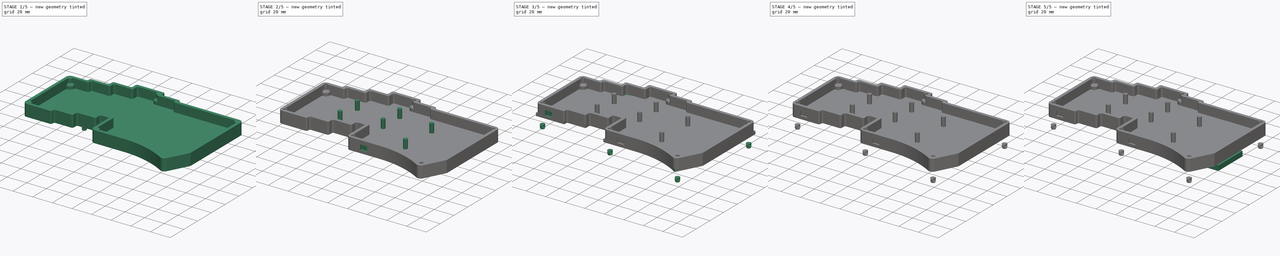
[diagram: build sequence overview — one tinted view per stage of 5, left to right]
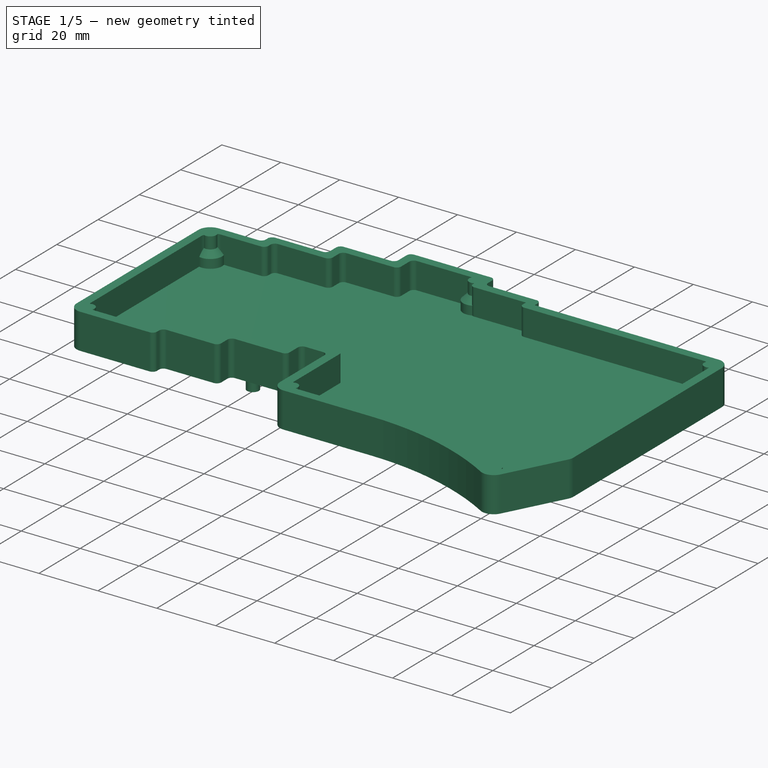
[diagram: stage 1 of 5 — iso view after this stage's code; geometry added in this stage tinted green]
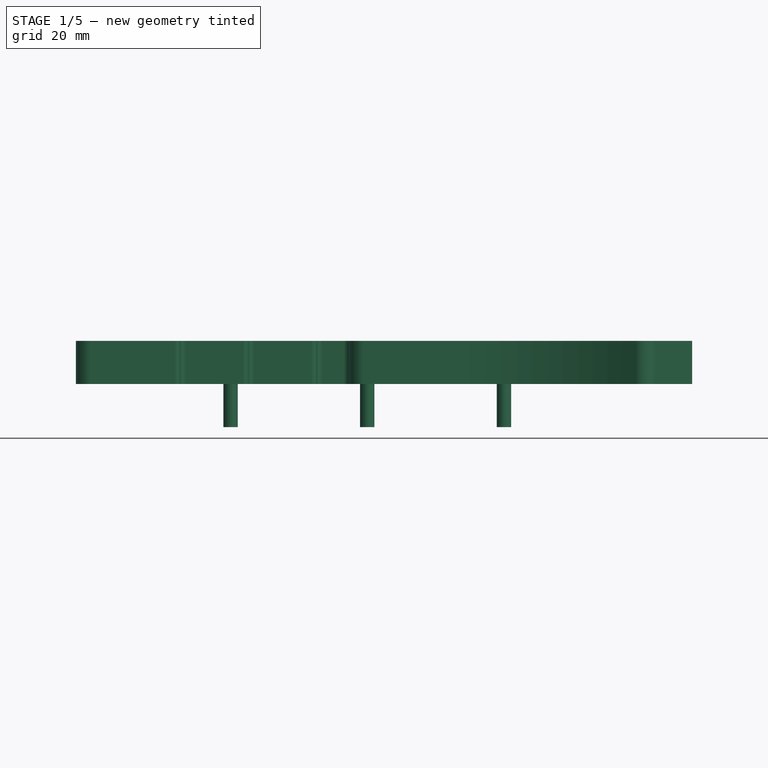
[diagram: stage 1 of 5 — front view after this stage's code; geometry added in this stage tinted green]
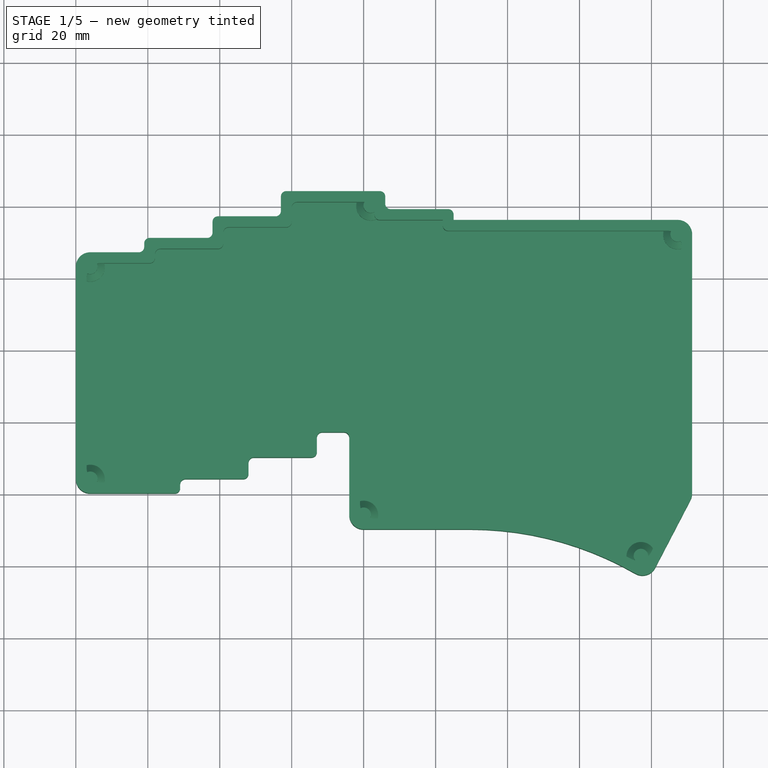
[diagram: stage 1 of 5 — top view after this stage's code; geometry added in this stage tinted green]
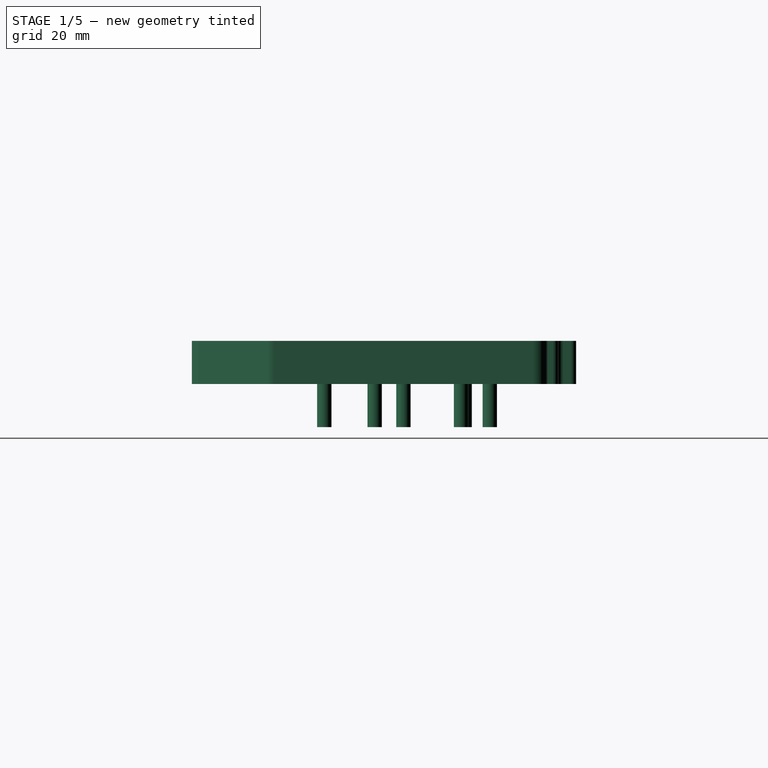
[diagram: stage 1 of 5 — right view after this stage's code; geometry added in this stage tinted green]
FCSTD DOCUMENT  (FreeCAD 1.0R39319 (Git))
Label: LeftFrameTop
License: All rights reserved
LicenseURL: https://en.wikipedia.org/wiki/All_rights_reserved
objects: PartDesign::SubShapeBinder×13, App::Link×10, Sketcher::SketchObject×9, Part::FeaturePython×8, PartDesign::Boolean×7, PartDesign::Fillet×6, PartDesign::Pocket×5, PartDesign::Body×3, PartDesign::Pad×2, PartDesign::Hole×2, Part::Box×1, PartDesign::Thickness×1, Part::Feature×1
note: 104 computed .brp shape members not serialized (recipe doc carries the construction recipe); baked Part::Feature solids carry a one-line shape summary decoded from their .brp
EXTERNAL_REF file=Config.FCStd obj=VarSet
EXTERNAL_REF file=SwitchHoleNegative.FCStd obj=Body001
EXTERNAL_REF file=lib/mx_switch.FCStd obj=Compound
EXTERNAL_REF file=nicenano.FCStd obj=nice_nano_v2_v1
EXTERNAL_REF file=lib/ec11.FCStd obj=EC11B_SW_Vert_F
EXTERNAL_REF file=SwitchHoleNegative.FCStd obj=Body003
EXTERNAL_REF file=SwitchHoleNegative.FCStd obj=Body
EXTERNAL_REF file=lib/extras.FCStd obj=Body001
EXTERNAL_REF file=lib/extras.FCStd obj=Body002
EXTERNAL_REF file=../logo/Logo.FCStd obj=Sketch

FEATURE [PartDesign::SubShapeBinder] Binder001  label="FrameBorderBinder001"
  BindCopyOnChange = 0
  BindMode = 0
  ClaimChildren = false
  Context = -> Body002 [Binder001.]
  Fuse = false
  MakeFace = true
  OffsetFill = false
  OffsetIntersection = false
  OffsetJoinType = 0
  OffsetOpenResult = false
  PartialLoad = false
  Placement = pos=(0,0,-12) rot=(0,0,1;0rad)
  Refine = true
  Relative = true
  Support = -> [Sketch002]
  _Version = 2
  expr: .Placement.Base.z = -<<Config>>#<<Vars>>.BottomCaseHeight
FEATURE [PartDesign::Pad] Pad001
  Direction = (0,0,1)
  Length = 12
  Length2 = 10
  Placement = pos=(0,0,-12) rot=(0,0,1;0rad)
  Profile = -> Binder001
  Refine = true
  Suppressed = false
  Type = 0
  expr: Length = <<Config>>#<<Vars>>.BottomCaseHeight
FEATURE [PartDesign::Thickness] Thickness
  Base = -> Pad001 [Face26]
  BaseFeature = -> Pad001
  Intersection = false
  Join = 1
  Mode = 0
  Refine = true
  Reversed = true
  SupportTransform = false
  Suppressed = false
  Value = 3
  expr: Value = <<Config>>#<<Vars>>.WallThickness
FEATURE [PartDesign::Fillet] Fillet003
  Base = -> Thickness [Edge35,Edge32,Edge65,Edge68,Edge1,Edge59,Edge118,Edge120,Edge136,Edge140,Edge97,Edge142]
  BaseFeature = -> Thickness
  Radius = 4
  Refine = true
  SupportTransform = false
  Suppressed = false
  UseAllEdges = false
  expr: Radius = <<Config>>#<<Vars>>.BigFillet
FEATURE [PartDesign::Fillet] Fillet004
  Base = -> Fillet003 [Edge120,Edge119,Edge117,Edge115,Edge113,Edge111,Edge109,Edge110,Edge108,Edge106,Edge104,Edge102,Edge100,Edge98,Edge96,Edge36,Edge158,Edge154,Edge150,Edge146,Edge142,Edge138,Edge134,Edge130,Edge122,Edge157,Edge161,Edge165,Edge169,Edge173,Edge177,Edge179]
  BaseFeature = -> Fillet003
  Radius = 1.5
  Refine = true
  SupportTransform = false
  Suppressed = false
  UseAllEdges = false
  expr: Radius = <<Config>>#<<Vars>>.MediumFillet
FEATURE [PartDesign::SubShapeBinder] Binder006  label="M3ScrewsPosBinder001"
  BindCopyOnChange = 0
  BindMode = 0
  ClaimChildren = false
  Context = -> Body002 [Binder006.]
  Fuse = false
  MakeFace = true
  OffsetFill = false
  OffsetIntersection = false
  OffsetJoinType = 0
  OffsetOpenResult = false
  PartialLoad = false
  Refine = true
  Relative = true
  Support = -> [Sketch003]
  _Version = 2
  expr: .Placement.Base.z = 0
FEATURE [App::Link] Link008  label="InsertCapsule"
  LinkedObject = -> <external lib/extras.FCStd>#Body001
FEATURE [Part::FeaturePython] PointArray002  label="standoffsGeometry"  # Draft array (typed FeaturePython)
  Base = -> Link008
  Count = 6
  Fuse = false
  PointObject = -> Binder006
FEATURE [Sketcher::SketchObject] Sketch005  label="SupportsLayout"
  ArcFitTolerance = 1e-06
  AttachmentOffset = pos=(0,0,-12) rot=(0,0,1;0rad)
  AttachmentSupport = -> [XY_Plane]
  FullyConstrained = true
  MakeInternals = false
  MapMode = 5
  Placement = pos=(0,0,-12) rot=(0,0,1;0rad)
  expr: .AttachmentOffset.Base.z = -<<Config>>#<<Vars>>.BottomCaseHeight
  expr: Constraints[0] = <<Config>>#<<Vars>>.FrameBorder + <<Config>>#<<Vars>>.SwitchSpacing * 2
  expr: Constraints[10] = <<Config>>#<<Vars>>.FrameBorder + <<Config>>#<<Vars>>.Col5Offset
  expr: Constraints[11] = <<Config>>#<<Vars>>.FrameBorder + <<Config>>#<<Vars>>.SwitchSpacing * 2 + <<Config>>#<<Vars>>.Col5Offset
  expr: Constraints[4] = <<Config>>#<<Vars>>.FrameBorder + <<Config>>#<<Vars>>.SwitchSpacing + <<Config>>#<<Vars>>.Col1Offset
  expr: Constraints[5] = <<Config>>#<<Vars>>.FrameBorder + <<Config>>#<<Vars>>.SwitchSpacing * 2 + <<Config>>#<<Vars>>.Col2Offset
  expr: Constraints[6] = <<Config>>#<<Vars>>.FrameBorder + <<Config>>#<<Vars>>.SwitchSpacing * 4
  expr: Constraints[7] = <<Config>>#<<Vars>>.FrameBorder + <<Config>>#<<Vars>>.SwitchSpacing * 6
  expr: Constraints[8] = <<Config>>#<<Vars>>.FrameBorder + <<Config>>#<<Vars>>.Col4Offset + <<Config>>#<<Vars>>.SwitchSpacing
  expr: Constraints[9] = <<Config>>#<<Vars>>.FrameBorder + <<Config>>#<<Vars>>.SwitchSpacing * 2 + <<Config>>#<<Vars>>.Col3Offset
  sketch-geometry (6):
    g0: GeomPoint X=43 Y=28 Z=0
    g1: GeomPoint X=43 Y=53 Z=0
    g2: GeomPoint X=81 Y=60 Z=0
    g3: GeomPoint X=81 Y=36 Z=0
    g4: GeomPoint X=119 Y=52 Z=0
    g5: GeomPoint X=119 Y=14 Z=0
  constraints (12):
    c: DistanceX(g-1,g0) = 43
    c: Vertical(g0,g1)
    c: Vertical(g3,g2)
    c: Vertical(g5,g4)
    c: DistanceY(g-1,g0) = 28
    c: DistanceY(g-1,g1) = 53
    c: DistanceX(g-1,g3) = 81
    c: DistanceX(g-1,g4) = 119
    c: DistanceY(g-1,g3) = 36
    c: DistanceY(g-1,g2) = 60
    c: DistanceY(g-1,g5) = 14
    c: DistanceY(g-1,g4) = 52
FEATURE [App::Link] Link009  label="Support"
  LinkedObject = -> <external lib/extras.FCStd>#Body002
FEATURE [Part::FeaturePython] PointArray004  label="Supports"  # Draft array (typed FeaturePython)
  Base = -> Link009
  Count = 6
  Fuse = false
  PointObject = -> Sketch005
FEATURE [PartDesign::Body] Body
  AllowCompound = false
  Group = -> [Sketch,Pad]
  Origin = -> Origin
  Tip = -> Pad
FEATURE [Sketcher::SketchObject] Sketch001
  ArcFitTolerance = 1e-06
  AttachmentSupport = -> [XY_Plane001]
  FullyConstrained = true
  MakeInternals = false
  MapMode = 5
  expr: Constraints[1] = <<Config>>#<<Vars>>.M3InsertDiameter + 2 mm * 2
  sketch-geometry (1):
    g0: Circle CenterX=0 CenterY=0 CenterZ=0 NormalX=0 NormalY=0 NormalZ=1 AngleXU=0 Radius=4.5
  constraints (2):
    c: Coincident(g0,g-1)
    c: Diameter(g0) = 9
FEATURE [PartDesign::Pad] Pad001
  Direction = (0,0,1)
  Length = 8
  Length2 = 10
  Profile = -> Sketch001
  ReferenceAxis = -> Sketch001 [N_Axis]
  Refine = true
  Suppressed = false
  Type = 0
FEATURE [PartDesign::Chamfer] Chamfer
  Angle = 45
  Base = -> Pad001 [Edge3]
  BaseFeature = -> Pad001
  ChamferType = 0
  FlipDirection = false
  Refine = true
  Size = 2
  Size2 = 1
  SupportTransform = false
  Suppressed = false
  UseAllEdges = false
FEATURE [PartDesign::Pad] Pad002
  BaseFeature = -> Chamfer
  Direction = (0,0,1)
  Length = 4
  Length2 = 10
  Profile = -> Chamfer [Edge5]
  Refine = true
  Suppressed = false
  Type = 0
  expr: Length = <<Config>>#<<Vars>>.BottomCaseHeight - 8 mm
FEATURE [PartDesign::Body] Body001  label="InsertCapsule"
  AllowCompound = false
  Group = -> [Sketch001,Pad001,Chamfer,Pad002]
  Origin = -> Origin001
  Tip = -> Pad002
FEATURE [Sketcher::SketchObject] Sketch002
  ArcFitTolerance = 1e-06
  AttachmentSupport = -> [XY_Plane002]
  FullyConstrained = true
  MakeInternals = false
  MapMode = 5
  sketch-geometry (1):
    g0: Circle CenterX=0 CenterY=0 CenterZ=0 NormalX=0 NormalY=0 NormalZ=1 AngleXU=0 Radius=2
  constraints (2):
    c: Coincident(g0,g-1)
    c: Diameter(g0) = 4
FEATURE [PartDesign::Pad] Pad003
  Direction = (0,0,1)
  Length = 12
  Length2 = 10
  Profile = -> Sketch002
  ReferenceAxis = -> Sketch002 [N_Axis]
  Refine = true
  Suppressed = false
  Type = 0
  expr: Length = <<Config>>#<<Vars>>.BottomCaseHeight
FEATURE [Sketcher::SketchObject] Sketch003
  ArcFitTolerance = 1e-06
  AttachmentSupport = -> [Pad003]
  FullyConstrained = true
  MakeInternals = false
  MapMode = 5
  Placement = pos=(0,0,12) rot=(0,0,1;0rad)
  sketch-geometry (1):
    g0: Circle CenterX=0 CenterY=0 CenterZ=0 NormalX=0 NormalY=0 NormalZ=1 AngleXU=0 Radius=0.75
  constraints (2):
    c: Coincident(g0,g-1)
    c: Diameter(g0) = 1.5
FEATURE [PartDesign::Pad] Pad004
  BaseFeature = -> Pad003
  Direction = (0,0,1)
  Length = 0.75
  Length2 = 10
  Profile = -> Sketch003
  ReferenceAxis = -> Sketch003 [N_Axis]
  Refine = true
  Suppressed = false
  Type = 0
FEATURE [PartDesign::Chamfer] Chamfer001
  Angle = 45
  Base = -> Pad004 [Edge6]
  BaseFeature = -> Pad004
  ChamferType = 0
  FlipDirection = false
  Refine = true
  Size = 0.5
  Size2 = 1
  SupportTransform = false
  Suppressed = false
  UseAllEdges = false
FEATURE [PartDesign::Body] Body002  label="Support"
  AllowCompound = false
  Group = -> [Sketch002,Pad003,Sketch003,Pad004,Chamfer001]
  Origin = -> Origin002
  Tip = -> Chamfer001
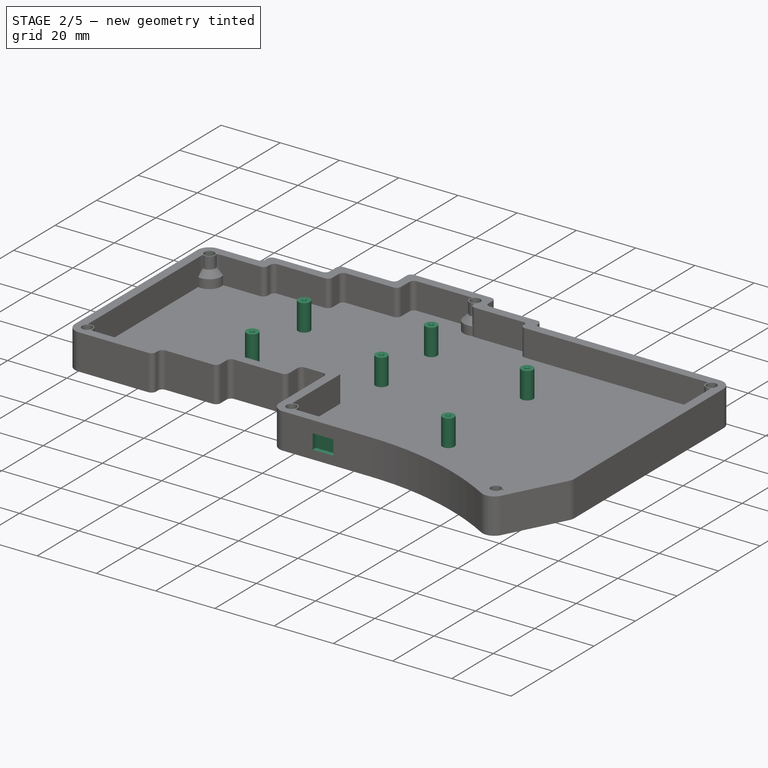
[diagram: stage 2 of 5 — iso view after this stage's code; geometry added in this stage tinted green]
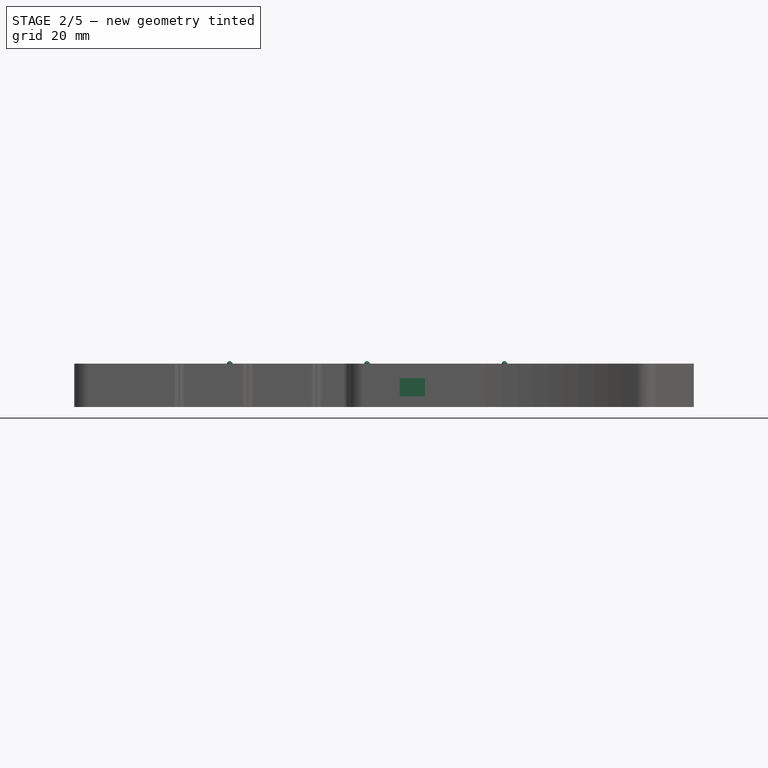
[diagram: stage 2 of 5 — front view after this stage's code; geometry added in this stage tinted green]
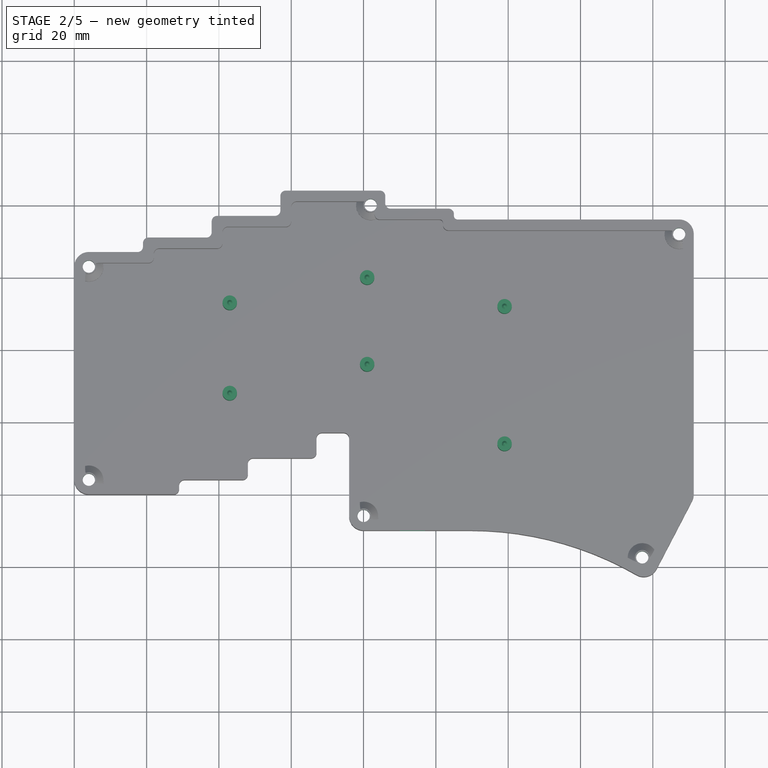
[diagram: stage 2 of 5 — top view after this stage's code; geometry added in this stage tinted green]
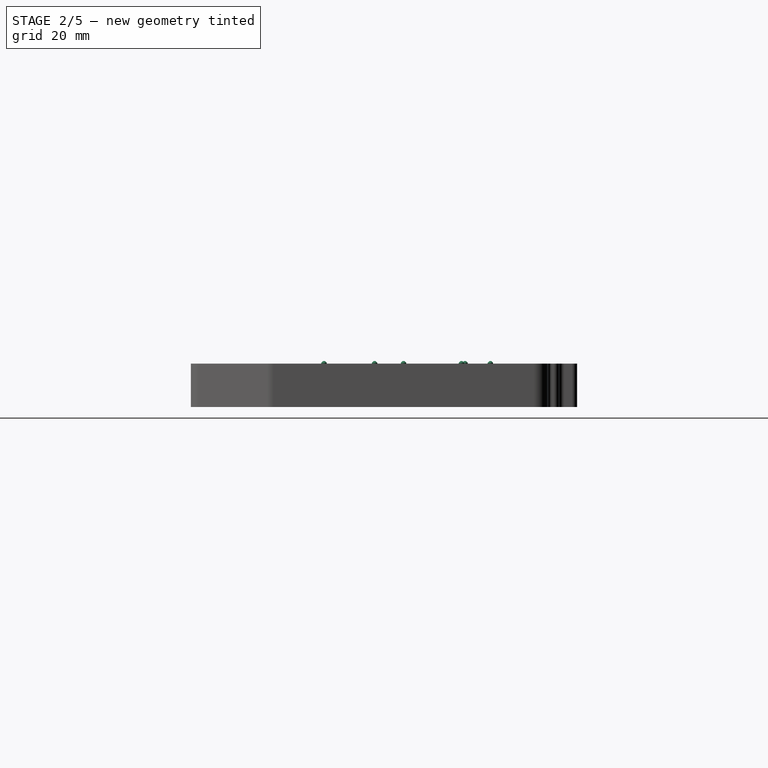
[diagram: stage 2 of 5 — right view after this stage's code; geometry added in this stage tinted green]
FEATURE [PartDesign::Fillet] Fillet005
  Base = -> Fillet004 [Edge48,Edge193]
  BaseFeature = -> Fillet004
  Radius = 1
  Refine = true
  SupportTransform = false
  Suppressed = false
  UseAllEdges = false
  expr: Radius = <<Config>>#<<Vars>>.LittleFillet
FEATURE [PartDesign::Boolean] Boolean007
  BaseFeature = -> Fillet005
  Group = -> [Binder008]
  Refine = true
  Suppressed = false
  Type = 0
  UsePlacement = true
FEATURE [PartDesign::SubShapeBinder] Binder013  label="HolesGeometryBinder"
  BindCopyOnChange = 0
  BindMode = 0
  ClaimChildren = false
  Context = -> Body002 [Binder013.]
  Fuse = false
  MakeFace = true
  OffsetFill = false
  OffsetIntersection = false
  OffsetJoinType = 0
  OffsetOpenResult = false
  PartialLoad = false
  Placement = pos=(0,0,-12) rot=(0,0,1;0rad)
  Refine = true
  Relative = true
  Support = -> [PointArray003]
  _Version = 2
  expr: .Placement.Base.z = -<<Config>>#<<Vars>>.BottomCaseHeight
FEATURE [PartDesign::Hole] Hole001
  BaseFeature = -> Boolean007
  CustomThreadClearance = 0
  Depth = 25
  DepthType = 0
  Diameter = 3.4
  DrillForDepth = false
  DrillPoint = 1
  DrillPointAngle = 118
  HoleCutCountersinkAngle = 90
  HoleCutCustomValues = false
  HoleCutDepth = 5
  HoleCutDiameter = 4.05
  HoleCutType = 3
  ModelThread = false
  Profile = -> Binder013
  Refine = true
  Reversed = true
  Suppressed = false
  Tapered = false
  TaperedAngle = 90
  ThreadClass = 0
  ThreadDepth = 25
  ThreadDepthType = 0
  ThreadDirection = 0
  ThreadFit = 0
  ThreadSize = 9
  ThreadType = 1
  Threaded = false
  UseCustomThreadClearance = false
  expr: HoleCutDepth = <<Config>>#<<Vars>>.M3InsertLength
  expr: HoleCutDiameter = <<Config>>#<<Vars>>.M3InsertDiameter
FEATURE [PartDesign::SubShapeBinder] Binder014
  BindCopyOnChange = 0
  BindMode = 0
  ClaimChildren = false
  Context = -> Body002 [Binder014.]
  Fuse = false
  MakeFace = true
  OffsetFill = false
  OffsetIntersection = false
  OffsetJoinType = 0
  OffsetOpenResult = false
  PartialLoad = false
  Placement = pos=(0,0,12) rot=(0,0,1;0rad)
  Refine = true
  Relative = true
  Support = -> [PointArray004]
  _Version = 2
  expr: .Placement.Base.z = <<Config>>#<<Vars>>.BottomCaseHeight
FEATURE [PartDesign::Boolean] Boolean008
  BaseFeature = -> Hole001
  Group = -> [Binder014]
  Refine = true
  Suppressed = false
  Type = 0
  UsePlacement = true
FEATURE [Sketcher::SketchObject] Sketch006
  ArcFitTolerance = 1e-06
  AttachmentSupport = -> [Boolean008]
  FullyConstrained = true
  MakeInternals = false
  MapMode = 5
  Placement = pos=(0,-10,0) rot=(1,0,0;1.5708rad)
  expr: Constraints[10] = <<Config>>#<<Vars>>.AddonSlotPosZ
  expr: Constraints[11] = <<Config>>#<<Vars>>.AddonSlot2PosX
  expr: Constraints[8] = <<Config>>#<<Vars>>.AddonSlotWidth
  expr: Constraints[9] = <<Config>>#<<Vars>>.AddonSlotHeight
  sketch-geometry (4):
    g0: LineSegment StartX=90 StartY=3 StartZ=0 EndX=97 EndY=3 EndZ=0
    g1: LineSegment StartX=97 StartY=3 StartZ=0 EndX=97 EndY=8 EndZ=0
    g2: LineSegment StartX=97 StartY=8 StartZ=0 EndX=90 EndY=8 EndZ=0
    g3: LineSegment StartX=90 StartY=8 StartZ=0 EndX=90 EndY=3 EndZ=0
  constraints (12):
    c: Coincident(g0,g1)
    c: Coincident(g1,g2)
    c: Coincident(g2,g3)
    c: Coincident(g3,g0)
    c: Horizontal(g0)
    c: Horizontal(g2)
    c: Vertical(g1)
    c: Vertical(g3)
    c: DistanceX(g0,g0) = 7
    c: DistanceY(g3,g3) = 5
    c: Distance(g-1,g0) = 3
    c: Distance(g-2,g3) = 90
FEATURE [PartDesign::Pocket] Pocket001
  BaseFeature = -> Boolean008
  Direction = (0,1,-2e-16)
  Length = 1.5
  Length2 = 5
  Profile = -> Sketch006
  ReferenceAxis = -> Sketch006 [N_Axis]
  Refine = true
  Suppressed = false
  Type = 0
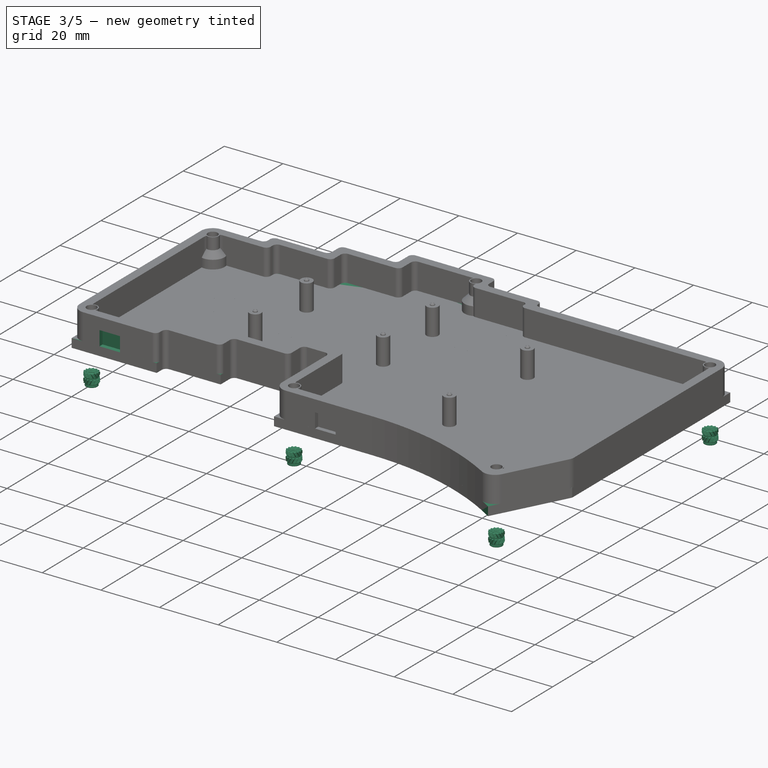
[diagram: stage 3 of 5 — iso view after this stage's code; geometry added in this stage tinted green]
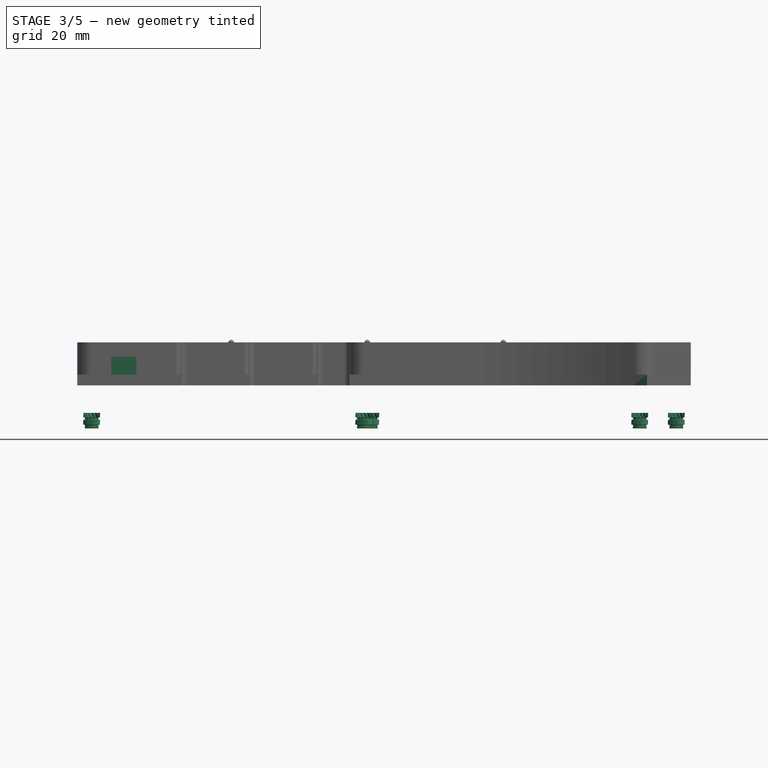
[diagram: stage 3 of 5 — front view after this stage's code; geometry added in this stage tinted green]
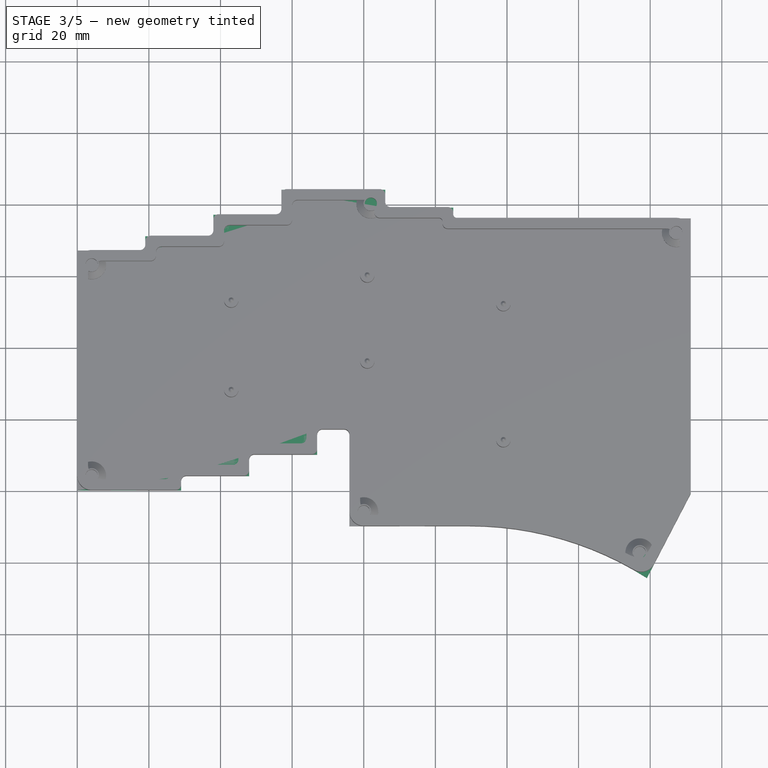
[diagram: stage 3 of 5 — top view after this stage's code; geometry added in this stage tinted green]
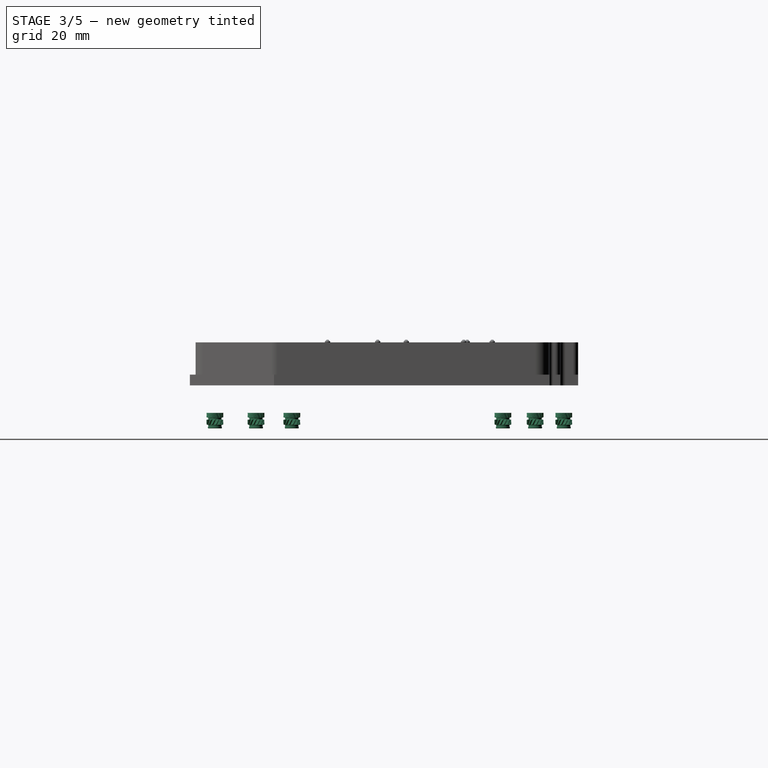
[diagram: stage 3 of 5 — right view after this stage's code; geometry added in this stage tinted green]
FEATURE [PartDesign::Body] Body  label="Layout"
  AllowCompound = false
  Origin = -> Origin
FEATURE [Sketcher::SketchObject] Sketch  label="6x3_Layout"
  ArcFitTolerance = 1e-06
  AttachmentSupport = -> [XY_Plane]
  FullyConstrained = true
  MakeInternals = false
  MapMode = 5
  expr: Constraints[0] = <<Config>>#<<Vars>>.FrameBorder + 0.5 * <<Config>>#<<Vars>>.SwitchSpacing
  expr: Constraints[14] = <<Config>>#<<Vars>>.SwitchSpacing
  expr: Constraints[15] = <<Config>>#<<Vars>>.SwitchSpacing
  expr: Constraints[16] = <<Config>>#<<Vars>>.SwitchSpacing
  expr: Constraints[17] = <<Config>>#<<Vars>>.SwitchSpacing
  expr: Constraints[18] = <<Config>>#<<Vars>>.SwitchSpacing
  expr: Constraints[19] = <<Config>>#<<Vars>>.FrameBorder + 0.5 * <<Config>>#<<Vars>>.SwitchSpacing + <<Config>>#<<Vars>>.Col1Offset
  expr: Constraints[1] = <<Config>>#<<Vars>>.FrameBorder + 0.5 * <<Config>>#<<Vars>>.SwitchSpacing + <<Config>>#<<Vars>>.Col0Offset
  expr: Constraints[20] = <<Config>>#<<Vars>>.FrameBorder + 0.5 * <<Config>>#<<Vars>>.SwitchSpacing + <<Config>>#<<Vars>>.Col2Offset
  expr: Constraints[21] = <<Config>>#<<Vars>>.FrameBorder + 0.5 * <<Config>>#<<Vars>>.SwitchSpacing + <<Config>>#<<Vars>>.Col3Offset
  expr: Constraints[22] = <<Config>>#<<Vars>>.FrameBorder + 0.5 * <<Config>>#<<Vars>>.SwitchSpacing + <<Config>>#<<Vars>>.Col4Offset
  expr: Constraints[23] = <<Config>>#<<Vars>>.FrameBorder + 0.5 * <<Config>>#<<Vars>>.SwitchSpacing + <<Config>>#<<Vars>>.Col5Offset
  expr: Constraints[24] = <<Config>>#<<Vars>>.SwitchSpacing
  expr: Constraints[25] = <<Config>>#<<Vars>>.SwitchSpacing
  expr: Constraints[26] = <<Config>>#<<Vars>>.SwitchSpacing
  expr: Constraints[27] = <<Config>>#<<Vars>>.SwitchSpacing
  expr: Constraints[28] = <<Config>>#<<Vars>>.SwitchSpacing
  expr: Constraints[29] = <<Config>>#<<Vars>>.SwitchSpacing
  expr: Constraints[30] = <<Config>>#<<Vars>>.SwitchSpacing
  expr: Constraints[31] = <<Config>>#<<Vars>>.SwitchSpacing
  expr: Constraints[32] = <<Config>>#<<Vars>>.SwitchSpacing
  expr: Constraints[33] = <<Config>>#<<Vars>>.SwitchSpacing
  expr: Constraints[34] = <<Config>>#<<Vars>>.SwitchSpacing
  expr: Constraints[35] = <<Config>>#<<Vars>>.SwitchSpacing
  expr: Constraints[37] = <<Config>>#<<Vars>>.FrameBorder + <<Config>>#<<Vars>>.Col5Offset - 0.5 * <<Config>>#<<Vars>>.SwitchSpacing
  sketch-geometry (19):
    g0: GeomPoint X=14.5 Y=14.5 Z=0
    g1: GeomPoint X=33.5 Y=18.5 Z=0
    g2: GeomPoint X=52.5 Y=24.5 Z=0
    g3: GeomPoint X=71.5 Y=31.5 Z=0
    g4: GeomPoint X=90.5 Y=26.5 Z=0
    g5: GeomPoint X=109.5 Y=23.5 Z=0
    g6: GeomPoint X=14.5 Y=33.5 Z=0
    g7: GeomPoint X=33.5 Y=37.5 Z=0
    g8: GeomPoint X=52.5 Y=43.5 Z=0
    g9: GeomPoint X=71.5 Y=50.5 Z=0
    g10: GeomPoint X=90.5 Y=45.5 Z=0
    g11: GeomPoint X=109.5 Y=42.5 Z=0
    g12: GeomPoint X=14.5 Y=52.5 Z=0
    g13: GeomPoint X=33.5 Y=56.5 Z=0
    g14: GeomPoint X=52.5 Y=62.5 Z=0
    g15: GeomPoint X=71.5 Y=69.5 Z=0
    g16: GeomPoint X=90.5 Y=64.5 Z=0
    g17: GeomPoint X=109.5 Y=61.5 Z=0
    g18: GeomPoint X=90.5 Y=4.5 Z=0
  constraints (38):
    c: DistanceX(g-1,g0) = 14.5
    c: DistanceY(g-1,g0) = 14.5
    c: Vertical(g0,g6)
    c: Vertical(g6,g12)
    c: Vertical(g1,g7)
    c: Vertical(g7,g13)
    c: Vertical(g2,g8)
    c: Vertical(g8,g14)
    c: Vertical(g3,g9)
    c: Vertical(g9,g15)
    c: Vertical(g4,g10)
    c: Vertical(g10,g16)
    c: Vertical(g5,g11)
    c: Vertical(g11,g17)
    c: DistanceY(g0,g6) = 19
    c: DistanceY(g6,g12) = 19
    c: DistanceX(g0,g1) = 19
    c: DistanceY(g1,g7) = 19
    c: DistanceY(g7,g13) = 19
    c: DistanceY(g-1,g1) = 18.5
    c: DistanceY(g-1,g2) = 24.5
    c: DistanceY(g-1,g3) = 31.5
    c: DistanceY(g-1,g4) = 26.5
    c: DistanceY(g-1,g5) = 23.5
    c: DistanceX(g1,g2) = 19
    c: DistanceY(g2,g8) = 19
    c: DistanceY(g8,g14) = 19
    c: DistanceY(g3,g9) = 19
    c: DistanceY(g9,g15) = 19
    c: DistanceX(g2,g3) = 19
    c: DistanceX(g3,g4) = 19
    c: DistanceY(g4,g10) = 19
    c: DistanceY(g10,g16) = 19
    c: DistanceX(g4,g5) = 19
    c: DistanceY(g5,g11) = 19
    c: DistanceY(g11,g17) = 19
    c: Vertical(g18,g4)
    c: Distance(g18,g-1) = 4.5
FEATURE [App::Link] Link  label="SwitchPocket"
  LinkedObject = -> <external SwitchHoleNegative.FCStd>#Body001
FEATURE [Part::FeaturePython] PointArray  # Draft array (typed FeaturePython)
  Base = -> Link
  Count = 19
  Fuse = false
  PointObject = -> Sketch
FEATURE [PartDesign::Body] Body001  label="FrameTop"
  AllowCompound = false
  Group = -> [Pad,Fillet,Fillet001,Fillet002,Binder,Boolean,Boolean001,Boolean002,Boolean003,Binder009,Hole,Boolean006,Binder015,Pocket]
  Origin = -> Origin001
  Tip = -> Pocket
FEATURE [Part::Feature] Part__Feature  label="94459A130_Heat-Set Inserts for Plastic"
  Placement = pos=(0,0,0) rot=(1,0,0;1.5708rad)
  shape: bbox 4.74 x 4.749 x 4.466 mm, 209 faces (baked)
  expr: .Placement.Base.z = 0
FEATURE [Part::FeaturePython] PointArray005  # Draft array (typed FeaturePython)
  Base = -> Part__Feature
  Count = 6
  Fuse = false
  Placement = pos=(0,0,-9.85) rot=(0,0,1;0rad)
  PointObject = -> Sketch003
  expr: .Placement.Base.z = -<<Config>>#<<Vars>>.BottomCaseHeight + 2.15 mm
FEATURE [Sketcher::SketchObject] Sketch007
  ArcFitTolerance = 1e-06
  AttachmentSupport = -> [Pocket001]
  FullyConstrained = true
  MakeInternals = false
  MapMode = 5
  Placement = pos=(0,79,0) rot=(0,0.707107,0.707107;3.14159rad)
  expr: Constraints[10] = <<Config>>#<<Vars>>.AddonSlotPosZ
  expr: Constraints[11] = <<Config>>#<<Vars>>.AddonSlot2PosX
  expr: Constraints[8] = <<Config>>#<<Vars>>.AddonSlotWidth
  expr: Constraints[9] = <<Config>>#<<Vars>>.AddonSlotHeight
  sketch-geometry (4):
    g0: LineSegment StartX=-97 StartY=8 StartZ=0 EndX=-97 EndY=3 EndZ=0
    g1: LineSegment StartX=-97 StartY=3 StartZ=0 EndX=-90 EndY=3 EndZ=0
    g2: LineSegment StartX=-90 StartY=3 StartZ=0 EndX=-90 EndY=8 EndZ=0
    g3: LineSegment StartX=-90 StartY=8 StartZ=0 EndX=-97 EndY=8 EndZ=0
  constraints (12):
    c: Coincident(g0,g1)
    c: Coincident(g1,g2)
    c: Coincident(g2,g3)
    c: Coincident(g3,g0)
    c: Vertical(g0)
    c: Vertical(g2)
    c: Horizontal(g1)
    c: Horizontal(g3)
    c: DistanceX(g1,g1) = 7
    c: DistanceY(g0,g0) = 5
    c: Distance(g-1,g1) = 3
    c: Distance(g-2,g2) = 90
FEATURE [PartDesign::Pocket] Pocket002
  BaseFeature = -> Pocket001
  Direction = (0,-1,2e-16)
  Length = 1.5
  Length2 = 5
  Profile = -> Sketch007
  ReferenceAxis = -> Sketch007 [N_Axis]
  Refine = true
  Suppressed = false
  Type = 0
  expr: Length = <<Config>>#<<Vars>>.AddonSlotDepth
FEATURE [Sketcher::SketchObject] Sketch008
  ArcFitTolerance = 1e-06
  AttachmentSupport = -> [Pocket002]
  FullyConstrained = true
  MakeInternals = false
  MapMode = 5
  Placement = pos=(0,0,0) rot=(1,0,0;1.5708rad)
  expr: Constraints[10] = <<Config>>#<<Vars>>.AddonSlotPosZ
  expr: Constraints[11] = <<Config>>#<<Vars>>.AddonSlot1PosX
  expr: Constraints[8] = <<Config>>#<<Vars>>.AddonSlotWidth
  expr: Constraints[9] = <<Config>>#<<Vars>>.AddonSlotHeight
  sketch-geometry (4):
    g0: LineSegment StartX=9.5 StartY=8 StartZ=0 EndX=9.5 EndY=3 EndZ=0
    g1: LineSegment StartX=9.5 StartY=3 StartZ=0 EndX=16.5 EndY=3 EndZ=0
    g2: LineSegment StartX=16.5 StartY=3 StartZ=0 EndX=16.5 EndY=8 EndZ=0
    g3: LineSegment StartX=16.5 StartY=8 StartZ=0 EndX=9.5 EndY=8 EndZ=0
  constraints (12):
    c: Coincident(g0,g1)
    c: Coincident(g1,g2)
    c: Coincident(g2,g3)
    c: Coincident(g3,g0)
    c: Vertical(g0)
    c: Vertical(g2)
    c: Horizontal(g1)
    c: Horizontal(g3)
    c: DistanceX(g1,g1) = 7
    c: DistanceY(g2,g2) = 5
    c: Distance(g-1,g1) = 3
    c: Distance(g-2,g0) = 9.5
FEATURE [PartDesign::Pocket] Pocket003
  BaseFeature = -> Pocket002
  Direction = (0,1,-2e-16)
  Length = 1.5
  Length2 = 5
  Profile = -> Sketch008
  ReferenceAxis = -> Sketch008 [N_Axis]
  Refine = true
  Suppressed = false
  Type = 0
  expr: Length = <<Config>>#<<Vars>>.AddonSlotDepth
FEATURE [Sketcher::SketchObject] Sketch009
  ArcFitTolerance = 1e-06
  AttachmentSupport = -> [Pocket003]
  FullyConstrained = true
  MakeInternals = false
  MapMode = 5
  Placement = pos=(0,67,0) rot=(0,0.707107,0.707107;3.14159rad)
  expr: Constraints[10] = <<Config>>#<<Vars>>.AddonSlotPosZ
  expr: Constraints[11] = <<Config>>#<<Vars>>.AddonSlot1PosX
  expr: Constraints[8] = <<Config>>#<<Vars>>.AddonSlotHeight
  expr: Constraints[9] = <<Config>>#<<Vars>>.AddonSlotWidth
  sketch-geometry (4):
    g0: LineSegment StartX=-9.5 StartY=3 StartZ=0 EndX=-9.5 EndY=8 EndZ=0
    g1: LineSegment StartX=-9.5 StartY=8 StartZ=0 EndX=-16.5 EndY=8 EndZ=0
    g2: LineSegment StartX=-16.5 StartY=8 StartZ=0 EndX=-16.5 EndY=3 EndZ=0
    g3: LineSegment StartX=-16.5 StartY=3 StartZ=0 EndX=-9.5 EndY=3 EndZ=0
  constraints (12):
    c: Coincident(g0,g1)
    c: Coincident(g1,g2)
    c: Coincident(g2,g3)
    c: Coincident(g3,g0)
    c: Vertical(g0)
    c: Vertical(g2)
    c: Horizontal(g1)
    c: Horizontal(g3)
    c: DistanceY(g0,g0) = 5
    c: DistanceX(g3,g3) = 7
    c: Distance(g-1,g3) = 3
    c: Distance(g-2,g0) = 9.5
FEATURE [PartDesign::Pocket] Pocket004
  BaseFeature = -> Pocket003
  Direction = (0,-1,-0.5)
  Length = 1.5
  Length2 = 5
  Profile = -> Sketch009
  ReferenceAxis = -> Sketch009 [N_Axis]
  Refine = true
  Suppressed = false
  Type = 0
  UseCustomVector = true
  expr: Length = <<Config>>#<<Vars>>.AddonSlotDepth
FEATURE [PartDesign::Body] Body002  label="FrameBottom"
  AllowCompound = false
  Group = -> [Binder001,Pad001,Thickness,Fillet003,Fillet004,Fillet005,Boolean007,Binder013,Hole001,Boolean008,Sketch006,Pocket001,Sketch007,Pocket002,Sketch008,Pocket003,Sketch009,Pocket004]
  Origin = -> Origin002
  Placement = pos=(0,0,-12) rot=(0,0,1;0rad)
  Tip = -> Pocket004
  expr: .Placement.Base.z = -<<Config>>#<<Vars>>.BottomCaseHeight

RESOLVED EXTERNAL PARTS (link-assembly join: the EXTERNAL_REF files above that resolve inside this repo's crawl, each included once):
---- part SwitchHoleNegative.FCStd = doc fcstd_761a885e1cb6 ----
FCSTD DOCUMENT  (FreeCAD 1.0R39319 (Git))
Label: SwitchHoleNegative
License: All rights reserved
LicenseURL: https://en.wikipedia.org/wiki/All_rights_reserved
objects: Sketcher::SketchObject×7, PartDesign::Pad×7, PartDesign::Body×3, App::Link×1
note: 38 computed .brp shape members not serialized (recipe doc carries the construction recipe); baked Part::Feature solids carry a one-line shape summary decoded from their .brp
EXTERNAL_REF file=Config.FCStd obj=VarSet
EXTERNAL_REF file=lib/ec11.FCStd obj=EC11B_SW_Vert_F

FEATURE [Sketcher::SketchObject] Sketch001
  ArcFitTolerance = 1e-06
  AttachmentSupport = -> [XY_Plane003]
  FullyConstrained = true
  MakeInternals = false
  MapMode = 5
  expr: Constraints[8] = <<Config>>#<<Vars>>.SwitchHoleTotal
  expr: Constraints[9] = <<Config>>#<<Vars>>.SwitchHoleTotal
  sketch-geometry (4):
    g0: LineSegment StartX=7.025 StartY=-7.025 StartZ=0 EndX=7.025 EndY=7.025 EndZ=0
    g1: LineSegment StartX=7.025 StartY=7.025 StartZ=0 EndX=-7.025 EndY=7.025 EndZ=0
    g2: LineSegment StartX=-7.025 StartY=7.025 StartZ=0 EndX=-7.025 EndY=-7.025 EndZ=0
    g3: LineSegment StartX=-7.025 StartY=-7.025 StartZ=0 EndX=7.025 EndY=-7.025 EndZ=0
  constraints (11):
    c: Coincident(g0,g1)
    c: Coincident(g1,g2)
    c: Coincident(g2,g3)
    c: Coincident(g3,g0)
    c: Vertical(g0)
    c: Vertical(g2)
    c: Horizontal(g1)
    c: Horizontal(g3)
    c: DistanceX(g1,g1) = 14.05
    c: DistanceY(g2,g2) = 14.05
    c: Symmetric(g1,g0,g-1)
FEATURE [PartDesign::Pad] Pad001
  Direction = (0,0,1)
  Length = 1.5
  Length2 = 10
  Profile = -> Sketch001
  ReferenceAxis = -> Sketch001 [N_Axis]
  Refine = true
  Suppressed = false
  Type = 0
  expr: Length = <<Config>>#<<Vars>>.SwitchPlateThickness
FEATURE [Sketcher::SketchObject] Sketch002
  ArcFitTolerance = 1e-06
  AttachmentSupport = -> [Pad001]
  FullyConstrained = true
  MakeInternals = false
  MapMode = 5
  Placement = pos=(0,0,1.5) rot=(0,0,1;0rad)
  expr: Constraints[8] = <<Config>>#<<Vars>>.SwitchReliefLength
  expr: Constraints[9] = <<Config>>#<<Vars>>.SwitchReliefLength
  sketch-geometry (4):
    g0: LineSegment StartX=-8 StartY=8 StartZ=0 EndX=-8 EndY=-8 EndZ=0
    g1: LineSegment StartX=-8 StartY=-8 StartZ=0 EndX=8 EndY=-8 EndZ=0
    g2: LineSegment StartX=8 StartY=-8 StartZ=0 EndX=8 EndY=8 EndZ=0
    g3: LineSegment StartX=8 StartY=8 StartZ=0 EndX=-8 EndY=8 EndZ=0
  constraints (11):
    c: Coincident(g0,g1)
    c: Coincident(g1,g2)
    c: Coincident(g2,g3)
    c: Coincident(g3,g0)
    c: Vertical(g0)
    c: Vertical(g2)
    c: Horizontal(g1)
    c: Horizontal(g3)
    c: DistanceX(g3,g3) = 16
    c: DistanceY(g0,g0) = 16
    c: Symmetric(g0,g1,g-1)
FEATURE [PartDesign::Pad] Pad002
  BaseFeature = -> Pad001
  Direction = (0,0,1)
  Length = 1.5
  Length2 = 10
  Profile = -> Sketch002
  ReferenceAxis = -> Sketch002 [N_Axis]
  Refine = true
  Suppressed = false
  Type = 0
  expr: Length = <<Config>>#<<Vars>>.PlateThickness - <<Config>>#<<Vars>>.SwitchPlateThickness
FEATURE [PartDesign::Body] Body001  label="SwitchPocket"
  AllowCompound = false
  Group = -> [Sketch001,Pad001,Sketch002,Pad002]
  Origin = -> Origin003
  Placement = pos=(109.5,4.5,0) rot=(0,0,1;0rad)
  Tip = -> Pad002
FEATURE [Sketcher::SketchObject] Sketch
  ArcFitTolerance = 1e-06
  AttachmentSupport = -> [XY_Plane004]
  FullyConstrained = true
  MakeInternals = false
  MapMode = 5
  sketch-geometry (4):
    g0: LineSegment StartX=-6 StartY=-7.1 StartZ=0 EndX=6 EndY=-7.1 EndZ=0
    g1: LineSegment StartX=6 StartY=-7.1 StartZ=0 EndX=6 EndY=7.1 EndZ=0
    g2: LineSegment StartX=6 StartY=7.1 StartZ=0 EndX=-6 EndY=7.1 EndZ=0
    g3: LineSegment StartX=-6 StartY=7.1 StartZ=0 EndX=-6 EndY=-7.1 EndZ=0
  constraints (11):
    c: Coincident(g0,g1)
    c: Coincident(g1,g2)
    c: Coincident(g2,g3)
    c: Coincident(g3,g0)
    c: Horizontal(g0)
    c: Horizontal(g2)
    c: Vertical(g1)
    c: Vertical(g3)
    c: DistanceX(g2,g2) = 12
    c: DistanceY(g3,g3) = 14.2
    c: Symmetric(g2,g0,g-1)
FEATURE [App::Link] Link  label="EC11B-SW-Vert-F"
  LinkPlacement = pos=(0,-0.399999,-5) rot=(0,0,1;0rad)
  LinkedObject = -> <external lib/ec11.FCStd>#EC11B_SW_Vert_F
  Placement = pos=(0,-0.399999,-5) rot=(0,0,1;0rad)
FEATURE [PartDesign::Pad] Pad
  Direction = (0,0,1)
  Length = 1.5
  Length2 = 10
  Profile = -> Sketch
  ReferenceAxis = -> Sketch [N_Axis]
  Refine = true
  Suppressed = false
  Type = 0
  expr: Length = <<Config>>#<<Vars>>.PlateThickness - <<Config>>#<<Vars>>.SwitchPlateThickness
FEATURE [Sketcher::SketchObject] Sketch003
  ArcFitTolerance = 1e-06
  AttachmentSupport = -> [Pad]
  FullyConstrained = true
  MakeInternals = false
  MapMode = 5
  Placement = pos=(0,0,1.5) rot=(0,0,1;0rad)
  sketch-geometry (1):
    g0: Circle CenterX=0 CenterY=0 CenterZ=0 NormalX=0 NormalY=0 NormalZ=1 AngleXU=0 Radius=3.75
  constraints (2):
    c: Coincident(g0,g-1)
    c: Diameter(g0) = 7.5
FEATURE [PartDesign::Pad] Pad003
  BaseFeature = -> Pad
  Direction = (0,0,1)
  Length = 1.5
  Length2 = 10
  Profile = -> Sketch003
  ReferenceAxis = -> Sketch003 [N_Axis]
  Refine = true
  Suppressed = false
  Type = 0
  expr: Length = <<Config>>#<<Vars>>.SwitchPlateThickness
FEATURE [Sketcher::SketchObject] Sketch004
  ArcFitTolerance = 1e-06
  AttachmentSupport = -> [Pad003]
  ExternalGeometry = -> [Pad003]
  FullyConstrained = true
  MakeInternals = false
  MapMode = 5
  Placement = pos=(0,0,1.5) rot=(0,0,1;0rad)
  sketch-geometry (4):
    g0: LineSegment StartX=-1.075 StartY=-7.1 StartZ=0 EndX=1.075 EndY=-7.1 EndZ=0
    g1: LineSegment StartX=1.075 StartY=-7.1 StartZ=0 EndX=1.075 EndY=-5.9 EndZ=0
    g2: LineSegment StartX=1.075 StartY=-5.9 StartZ=0 EndX=-1.075 EndY=-5.9 EndZ=0
    g3: LineSegment StartX=-1.075 StartY=-5.9 StartZ=0 EndX=-1.075 EndY=-7.1 EndZ=0
  constraints (11):
    c: Coincident(g0,g1)
    c: Coincident(g1,g2)
    c: Coincident(g2,g3)
    c: Coincident(g3,g0)
    c: Horizontal(g0)
    c: Vertical(g1)
    c: Vertical(g3)
    c: PointOnObject(g0,g-3)
    c: Symmetric(g1,g2,g-2)
    c: Distance(g1,g3) = 2.15
    c: Distance(g0,g2) = 1.2
FEATURE [PartDesign::Pad] Pad004
  BaseFeature = -> Pad003
  Direction = (0,0,1)
  Length = 1.5
  Length2 = 10
  Profile = -> Sketch004
  ReferenceAxis = -> Sketch004 [N_Axis]
  Refine = true
  Suppressed = false
  Type = 0
  expr: Length = <<Config>>#<<Vars>>.SwitchPlateThickness
FEATURE [PartDesign::Body] Body003  label="RotaryPocket"
  AllowCompound = false
  Group = -> [Sketch,Pad,Sketch003,Pad003,Sketch004,Pad004]
  Origin = -> Origin004
  Tip = -> Pad004
FEATURE [Sketcher::SketchObject] Sketch005
  ArcFitTolerance = 1e-06
  AttachmentSupport = -> [XY_Plane]
  FullyConstrained = true
  MakeInternals = false
  MapMode = 5
  sketch-geometry (4):
    g0: LineSegment StartX=-7.15 StartY=-18.2 StartZ=0 EndX=7.15 EndY=-18.2 EndZ=0
    g1: LineSegment StartX=7.15 StartY=-18.2 StartZ=0 EndX=7.15 EndY=18.2 EndZ=0
    g2: LineSegment StartX=7.15 StartY=18.2 StartZ=0 EndX=-7.15 EndY=18.2 EndZ=0
    g3: LineSegment StartX=-7.15 StartY=18.2 StartZ=0 EndX=-7.15 EndY=-18.2 EndZ=0
  constraints (11):
    c: Coincident(g0,g1)
    c: Coincident(g1,g2)
    c: Coincident(g2,g3)
    c: Coincident(g3,g0)
    c: Horizontal(g0)
    c: Horizontal(g2)
    c: Vertical(g1)
    c: Vertical(g3)
    c: Symmetric(g2,g0,g-1)
    c: DistanceX(g2,g2) = 14.3
    c: DistanceY(g3,g3) = 36.4
FEATURE [PartDesign::Pad] Pad005
  Direction = (0,0,1)
  Length = 3
  Length2 = 10
  Profile = -> Sketch005
  ReferenceAxis = -> Sketch005 [N_Axis]
  Refine = true
  Suppressed = false
  Type = 0
FEATURE [Sketcher::SketchObject] Sketch006
  ArcFitTolerance = 1e-06
  AttachmentSupport = -> [Pad005]
  ExternalGeometry = -> [Pad005]
  FullyConstrained = true
  MakeInternals = false
  MapMode = 5
  Placement = pos=(0,0,0) rot=(1,0,0;3.14159rad)
  sketch-geometry (4):
    g0: LineSegment StartX=-7.15 StartY=18.2 StartZ=0 EndX=-7.15 EndY=15.8 EndZ=0
    g1: LineSegment StartX=-7.15 StartY=15.8 StartZ=0 EndX=7.15 EndY=15.8 EndZ=0
    g2: LineSegment StartX=7.15 StartY=15.8 StartZ=0 EndX=7.15 EndY=18.2 EndZ=0
    g3: LineSegment StartX=7.15 StartY=18.2 StartZ=0 EndX=-7.15 EndY=18.2 EndZ=0
  constraints (11):
    c: Coincident(g0,g1)
    c: Coincident(g1,g2)
    c: Coincident(g2,g3)
    c: Coincident(g3,g0)
    c: Vertical(g0)
    c: Vertical(g2)
    c: Horizontal(g1)
    c: Horizontal(g3)
    c: Coincident(g0,g-4)
    c: PointOnObject(g1,g-5)
    c: DistanceY(g2,g2) = 2.4
FEATURE [PartDesign::Pad] Pad006
  BaseFeature = -> Pad005
  Direction = (0,0,-1)
  Length = 1.5
  Length2 = 10
  Profile = -> Sketch006
  ReferenceAxis = -> Sketch006 [N_Axis]
  Refine = true
  Suppressed = false
  Type = 0
  expr: Length = <<Config>>#<<Vars>>.SwitchPlateThickness
FEATURE [PartDesign::Body] Body  label="NiceViewPocket"
  AllowCompound = false
  Group = -> [Sketch005,Pad005,Sketch006,Pad006]
  Origin = -> Origin
  Tip = -> Pad006
---- part lib/extras.FCStd = doc fcstd_7de95790efa8 ----
FCSTD DOCUMENT  (FreeCAD 1.0R39319 (Git))
Label: extras
License: All rights reserved
LicenseURL: https://en.wikipedia.org/wiki/All_rights_reserved
objects: PartDesign::Pad×5, Sketcher::SketchObject×4, PartDesign::Body×3, PartDesign::Chamfer×2
note: 32 computed .brp shape members not serialized (recipe doc carries the construction recipe); baked Part::Feature solids carry a one-line shape summary decoded from their .brp
EXTERNAL_REF file=../Config.FCStd obj=VarSet

FEATURE [Sketcher::SketchObject] Sketch
  ArcFitTolerance = 1e-06
  AttachmentSupport = -> [XY_Plane]
  FullyConstrained = true
  MakeInternals = false
  MapMode = 5
  sketch-geometry (1):
    g0: Circle CenterX=0 CenterY=0 CenterZ=0 NormalX=0 NormalY=0 NormalZ=1 AngleXU=0 Radius=2.5
  constraints (2):
    c: Coincident(g0,g-1)
    c: Diameter(g0) = 5
FEATURE [PartDesign::Pad] Pad
  Direction = (0,0,1)
  Length = 9
  Length2 = 10
  Profile = -> Sketch
  ReferenceAxis = -> Sketch [N_Axis]
  Refine = true
  Suppressed = false
  Type = 0
  expr: Length = <<Config>>#<<Vars>>.BottomCaseHeight - <<Config>>#<<Vars>>.WallThickness
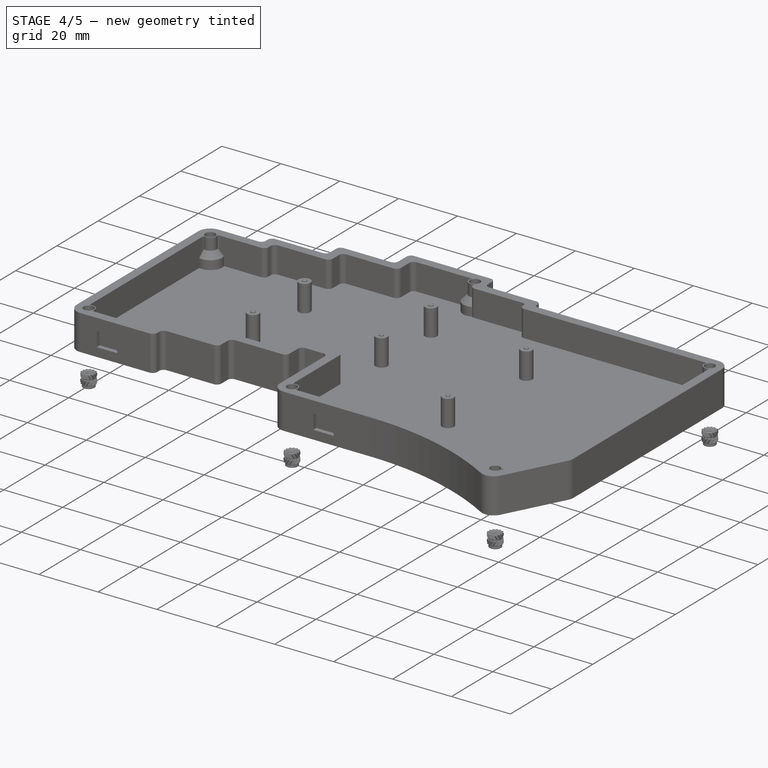
[diagram: stage 4 of 5 — iso view after this stage's code; geometry added in this stage tinted green]
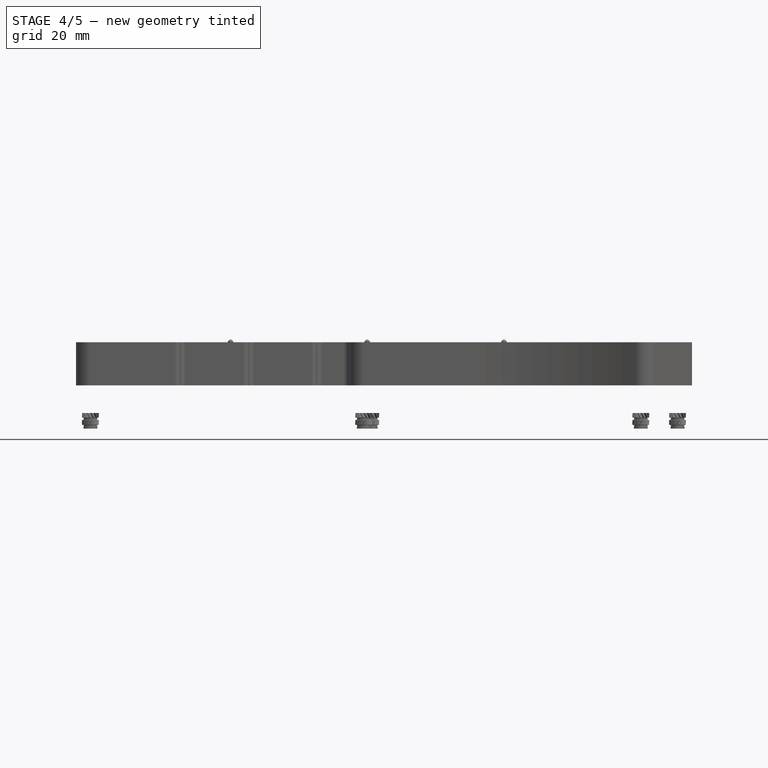
[diagram: stage 4 of 5 — front view after this stage's code; geometry added in this stage tinted green]
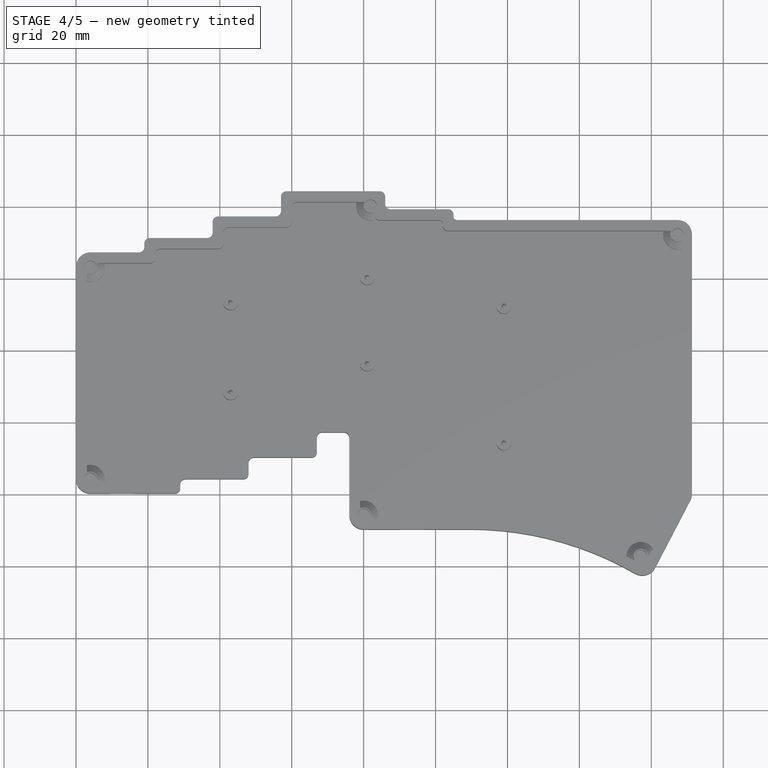
[diagram: stage 4 of 5 — top view after this stage's code; geometry added in this stage tinted green]
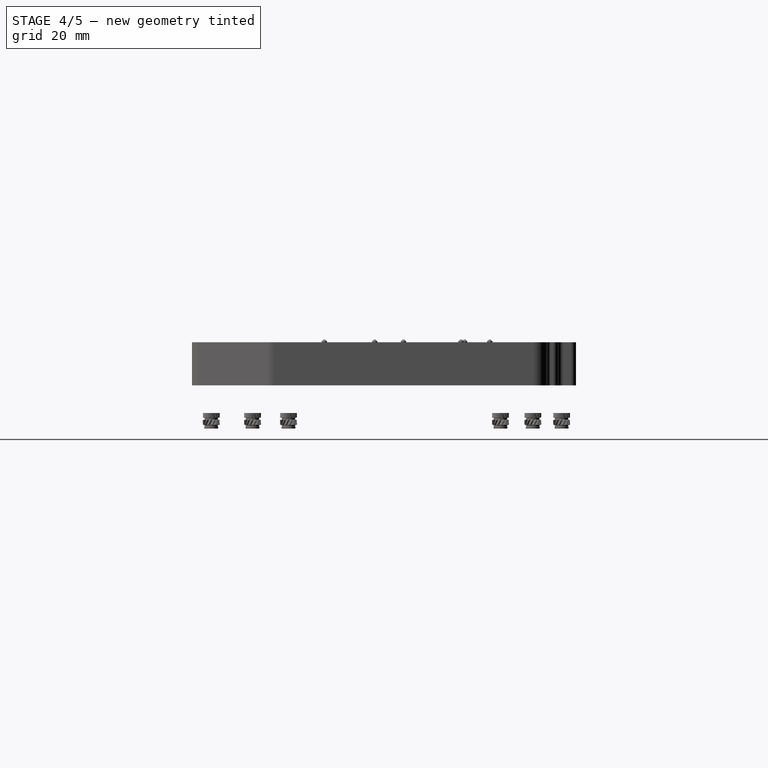
[diagram: stage 4 of 5 — right view after this stage's code; geometry added in this stage tinted green]
FEATURE [App::Link] Link004  label="nice!nano v2 v1"
  LinkPlacement = pos=(151.6,57.8,-1.89999) rot=(0,0,1;3.14159rad)
  LinkedObject = -> <external nicenano.FCStd>#nice_nano_v2_v1
  Placement = pos=(151.6,57.8,-1.89999) rot=(0,0,1;3.14159rad)
FEATURE [Sketcher::SketchObject] Sketch002  label="MasterFrameBorder"
  ArcFitTolerance = 1e-06
  AttachmentSupport = -> [XY_Plane001]
  FullyConstrained = true
  MakeInternals = false
  MapMode = 5
  expr: Constraints[39] = <<Config>>#<<Vars>>.FrameBorder * 2 + <<Config>>#<<Vars>>.SwitchSpacing
  expr: Constraints[40] = <<Config>>#<<Vars>>.SwitchSpacing
  expr: Constraints[41] = <<Config>>#<<Vars>>.SwitchSpacing
  expr: Constraints[42] = <<Config>>#<<Vars>>.SwitchSpacing - <<Config>>#<<Vars>>.FrameBorder * 2
  expr: Constraints[43] = <<Config>>#<<Vars>>.Col1Offset
  expr: Constraints[44] = <<Config>>#<<Vars>>.Col2Offset
  expr: Constraints[45] = <<Config>>#<<Vars>>.Col3Offset
  expr: Constraints[46] = <<Config>>#<<Vars>>.FrameBorder * 2 + <<Config>>#<<Vars>>.SwitchSpacing * 3
  expr: Constraints[47] = <<Config>>#<<Vars>>.SwitchSpacing
  expr: Constraints[48] = <<Config>>#<<Vars>>.SwitchSpacing
  expr: Constraints[49] = <<Config>>#<<Vars>>.SwitchSpacing + 2 * <<Config>>#<<Vars>>.FrameBorder
  expr: Constraints[50] = <<Config>>#<<Vars>>.Col1Offset
  expr: Constraints[51] = <<Config>>#<<Vars>>.Col2Offset - <<Config>>#<<Vars>>.Col1Offset
  expr: Constraints[52] = <<Config>>#<<Vars>>.Col3Offset - <<Config>>#<<Vars>>.Col2Offset
  expr: Constraints[53] = <<Config>>#<<Vars>>.SwitchSpacing
  expr: Constraints[54] = <<Config>>#<<Vars>>.Col3Offset - <<Config>>#<<Vars>>.Col4Offset
  expr: Constraints[55] = <<Config>>#<<Vars>>.Col4Offset - <<Config>>#<<Vars>>.Col5Offset
  expr: Constraints[57] = <<Config>>#<<Vars>>.SwitchSpacing
  expr: Constraints[60] = abs(<<Config>>#<<Vars>>.Col5Offset - <<Config>>#<<Vars>>.SwitchSpacing)
  expr: Constraints[61] = <<Config>>#<<Vars>>.SwitchSpacing * 1.5 + <<Config>>#<<Vars>>.FrameBorder
  expr: Constraints[65] = abs(<<Config>>#<<Vars>>.ThumbCenterY)
  expr: Constraints[70] = <<Config>>#<<Vars>>.SwitchSpacing + 1.5 * <<Config>>#<<Vars>>.FrameBorder
  expr: Constraints[71] = abs(<<Config>>#<<Vars>>.ThumbRotationAngle * 2.5) + 2.5 deg
  sketch-geometry (24):
    g0: LineSegment StartX=0 StartY=0 StartZ=0 EndX=29 EndY=0 EndZ=0
    g1: LineSegment StartX=29 StartY=0 StartZ=0 EndX=29 EndY=4 EndZ=0
    g2: LineSegment StartX=29 StartY=4 StartZ=0 EndX=48 EndY=4 EndZ=0
    g3: LineSegment StartX=48 StartY=4 StartZ=0 EndX=48 EndY=10 EndZ=0
    g4: LineSegment StartX=48 StartY=10 StartZ=0 EndX=67 EndY=10 EndZ=0
    g5: LineSegment StartX=67 StartY=10 StartZ=0 EndX=67 EndY=17 EndZ=0
    g6: LineSegment StartX=67 StartY=17 StartZ=0 EndX=76 EndY=17 EndZ=0
    g7: LineSegment StartX=76 StartY=17 StartZ=0 EndX=76 EndY=-10 EndZ=0
    g8: LineSegment StartX=159.082 StartY=-24.4518 StartZ=0 EndX=171.318 EndY=-0.94605 EndZ=0
    g9: LineSegment StartX=171.318 StartY=76 StartZ=0 EndX=105 EndY=76 EndZ=0
    g10: LineSegment StartX=105 StartY=76 StartZ=0 EndX=105 EndY=79 EndZ=0
    g11: LineSegment StartX=105 StartY=79 StartZ=0 EndX=86 EndY=79 EndZ=0
    g12: LineSegment StartX=86 StartY=79 StartZ=0 EndX=86 EndY=84 EndZ=0
    g13: LineSegment StartX=86 StartY=84 StartZ=0 EndX=57 EndY=84 EndZ=0
    g14: LineSegment StartX=57 StartY=84 StartZ=0 EndX=57 EndY=77 EndZ=0
    g15: LineSegment StartX=57 StartY=77 StartZ=0 EndX=38 EndY=77 EndZ=0
    g16: LineSegment StartX=38 StartY=77 StartZ=0 EndX=38 EndY=71 EndZ=0
    g17: LineSegment StartX=38 StartY=71 StartZ=0 EndX=19 EndY=71 EndZ=0
    g18: LineSegment StartX=19 StartY=71 StartZ=0 EndX=19 EndY=67 EndZ=0
    g19: LineSegment StartX=19 StartY=67 StartZ=0 EndX=0 EndY=67 EndZ=0
    g20: LineSegment StartX=0 StartY=67 StartZ=0 EndX=0 EndY=0 EndZ=0
    g21: LineSegment StartX=76 StartY=-10 StartZ=0 EndX=109.5 EndY=-10 EndZ=0
    g22: ArcOfCircle CenterX=109.5 CenterY=-102.28 CenterZ=0 NormalX=0 NormalY=0 NormalZ=1 AngleXU=0 Radius=92.28 StartAngle=1.00356 EndAngle=1.5708
    g23: LineSegment StartX=171.318 StartY=76 StartZ=0 EndX=171.318 EndY=-0.94605 EndZ=0
  constraints (72):
    c: Coincident(g-1,g0)
    c: PointOnObject(g0,g-1)
    c: Coincident(g0,g1)
    c: Vertical(g1)
    c: Coincident(g1,g2)
    c: Horizontal(g2)
    c: Coincident(g2,g3)
    c: Vertical(g3)
    c: Coincident(g3,g4)
    c: Horizontal(g4)
    c: Coincident(g4,g5)
    c: Vertical(g5)
    c: Coincident(g5,g6)
    c: Horizontal(g6)
    c: Coincident(g6,g7)
    c: Vertical(g7)
    c: Horizontal(g9)
    c: Coincident(g9,g10)
    c: Vertical(g10)
    c: Coincident(g10,g11)
    c: Horizontal(g11)
    c: Coincident(g11,g12)
    c: Vertical(g12)
    c: Coincident(g12,g13)
    c: Horizontal(g13)
    c: Coincident(g13,g14)
    c: Vertical(g14)
    c: Coincident(g14,g15)
    c: Horizontal(g15)
    c: Vertical(g16)
    c: Coincident(g16,g17)
    c: Horizontal(g17)
    c: Coincident(g17,g18)
    c: Vertical(g18)
    c: Coincident(g18,g19)
    c: PointOnObject(g19,g-2)
    c: Horizontal(g19)
    c: Coincident(g19,g20)
    c: Coincident(g20,g0)
    c: Distance(g-2,g1) = 29
    c: Distance(g1,g3) = 19
    c: Distance(g3,g5) = 19
    c: Distance(g7,g5) = 9
    c: Distance(g-1,g2) = 4
    c: Distance(g-1,g4) = 10
    c: Distance(g-1,g6) = 17
    c: Distance(g0,g19) = 67
    c: Distance(g-2,g18) = 19
    c: Distance(g18,g16) = 19
    c: Distance(g14,g12) = 29
    c: Distance(g19,g17) = 4
    c: Distance(g17,g15) = 6
    c: Distance(g15,g13) = 7
    c: Distance(g10,g12) = 19
    c: Distance(g13,g11) = 5
    c: Distance(g11,g9) = 3
    c: Coincident(g16,g15)
    c: Distance(g16,g14) = 19
    c: Coincident(g21,g7)
    c: Horizontal(g21)
    c: Distance(g7,g-1) = 10
    c: DistanceX(g21,g21) = 33.5
    c: Coincident(g22,g21)
    c: Coincident(g22,g8)
    c: Vertical(g22,g21)
    c: DistanceY(g22,g-1) = 102.28
    c: Vertical(g9,g8)
    c: Coincident(g23,g9)
    c: Coincident(g23,g8)
    c: Angle(g8,g22,g8) = 1.48353
    c: Distance(g8,g8) = 26.5
    c: Angle(g22) = 0.567232
FEATURE [PartDesign::SubShapeBinder] Binder  label="FrameBorderBinder"
  BindCopyOnChange = 0
  BindMode = 0
  ClaimChildren = false
  Context = -> Body001 [Binder.]
  Fuse = false
  MakeFace = true
  OffsetFill = false
  OffsetIntersection = false
  OffsetJoinType = 0
  OffsetOpenResult = false
  PartialLoad = false
  Refine = true
  Relative = true
  Support = -> [Sketch002]
  _Version = 2
FEATURE [PartDesign::Pad] Pad
  Direction = (0,0,1)
  Length = 3
  Length2 = 10
  Profile = -> Binder
  Refine = true
  Suppressed = false
  Type = 0
  expr: Length = <<Config>>#<<Vars>>.PlateThickness
FEATURE [PartDesign::Fillet] Fillet
  Base = -> Pad [Edge38,Edge41,Edge44,Edge47,Edge50,Edge53,Edge56,Edge5,Edge11,Edge14,Edge8,Edge20,Edge17,Edge23,Edge26,Edge29]
  BaseFeature = -> Pad
  Radius = 1.5
  Refine = true
  SupportTransform = false
  Suppressed = false
  UseAllEdges = false
  expr: Radius = <<Config>>#<<Vars>>.MediumFillet
FEATURE [PartDesign::Fillet] Fillet001
  Base = -> Fillet [Edge119,Edge92,Edge88,Edge86,Edge46,Edge117]
  BaseFeature = -> Fillet
  Radius = 4
  Refine = true
  SupportTransform = false
  Suppressed = false
  UseAllEdges = false
  expr: Radius = <<Config>>#<<Vars>>.BigFillet
FEATURE [PartDesign::Fillet] Fillet002
  Base = -> Fillet001 [Edge48]
  BaseFeature = -> Fillet001
  Radius = 1
  Refine = true
  SupportTransform = false
  Suppressed = false
  UseAllEdges = false
  expr: Radius = <<Config>>#<<Vars>>.LittleFillet
FEATURE [App::Link] Link005  label="EC11B-SW-Vert-F"
  LinkPlacement = pos=(132.3,24,-4.5) rot=(0,0,1;3.14159rad)
  LinkedObject = -> <external lib/ec11.FCStd>#EC11B_SW_Vert_F
  Placement = pos=(132.3,24,-4.5) rot=(0,0,1;3.14159rad)
  expr: .Placement.Base.x = <<Config>>#<<Vars>>.RotaryPosX
  expr: .Placement.Base.y = <<Config>>#<<Vars>>.RotaryPosY + 0.5 mm
FEATURE [App::Link] Link006  label="RotaryPocket"
  LinkPlacement = pos=(132.3,23.5,0) rot=(0,0,1;3.14159rad)
  LinkedObject = -> <external SwitchHoleNegative.FCStd>#Body003
  Placement = pos=(132.3,23.5,0) rot=(0,0,1;3.14159rad)
  expr: .Placement.Base.x = <<Config>>#<<Vars>>.RotaryPosX
  expr: .Placement.Base.y = <<Config>>#<<Vars>>.RotaryPosY
FEATURE [App::Link] Link007  label="NiceViewPocket"
  LinkPlacement = pos=(145.159,61.5,1.5) rot=(0,0,1;1.5708rad)
  LinkedObject = -> <external SwitchHoleNegative.FCStd>#Body
  Placement = pos=(145.159,61.5,1.5) rot=(0,0,1;1.5708rad)
  expr: .Placement.Base.x = (<<Config>>#<<Vars>>.MasterRightEdge + <<Config>>#<<Vars>>.FrameBorder + <<Config>>#<<Vars>>.SwitchSpacing * 6) / 2
  expr: .Placement.Base.y = <<Config>>#<<Vars>>.FrameBorder + <<Config>>#<<Vars>>.Col5Offset + <<Config>>#<<Vars>>.SwitchSpacing * 2.5
  expr: .Placement.Base.z = <<Config>>#<<Vars>>.SwitchPlateThickness
FEATURE [Sketcher::SketchObject] Sketch003  label="M3ScrewsPos"
  ArcFitTolerance = 1e-06
  AttachmentSupport = -> [XY_Plane]
  FullyConstrained = true
  MakeInternals = false
  MapMode = 5
  expr: Constraints[0] = <<Config>>#<<Vars>>.FrameBorder * 2 + <<Config>>#<<Vars>>.SwitchSpacing * 3 - (<<Config>>#<<Vars>>.M3InsertDiameter * 0.5 + 2 mm)
  expr: Constraints[10] = <<Config>>#<<Vars>>.ThumbPointX - 2 mm
  expr: Constraints[11] = abs(<<Config>>#<<Vars>>.ThumbPointY) - 7 mm
  expr: Constraints[1] = <<Config>>#<<Vars>>.M3InsertDiameter * 0.5 + 2 mm
  expr: Constraints[2] = <<Config>>#<<Vars>>.M3InsertDiameter * 0.5 + 2 mm
  expr: Constraints[3] = <<Config>>#<<Vars>>.M3InsertDiameter * 0.5 + 2 mm
  expr: Constraints[4] = <<Config>>#<<Vars>>.FrameBorder * 2 + <<Config>>#<<Vars>>.SwitchSpacing * 3 - (<<Config>>#<<Vars>>.M3InsertDiameter * 0.5 + 2 mm) + <<Config>>#<<Vars>>.Col3Offset
  expr: Constraints[5] = <<Config>>#<<Vars>>.FrameBorder * 2 + <<Config>>#<<Vars>>.SwitchSpacing * 4 - <<Config>>#<<Vars>>.M3StandoffRadius
  expr: Constraints[6] = <<Config>>#<<Vars>>.SwitchSpacing * 4 + <<Config>>#<<Vars>>.M3StandoffRadius
  expr: Constraints[7] = abs(<<Config>>#<<Vars>>.Col5Offset - <<Config>>#<<Vars>>.SwitchSpacing + <<Config>>#<<Vars>>.M3StandoffRadius)
  expr: Constraints[8] = <<Config>>#<<Vars>>.MasterRightEdge - <<Config>>#<<Vars>>.M3StandoffRadius
  expr: Constraints[9] = <<Config>>#<<Vars>>.FrameBorder * 2 + <<Config>>#<<Vars>>.SwitchSpacing * 3 + <<Config>>#<<Vars>>.Col5Offset - <<Config>>#<<Vars>>.M3StandoffRadius
  sketch-geometry (6):
    g0: GeomPoint X=4.025 Y=4.025 Z=0
    g1: GeomPoint X=4.025 Y=62.975 Z=0
    g2: GeomPoint X=81.975 Y=79.975 Z=0
    g3: GeomPoint X=80.025 Y=-5.975 Z=0
    g4: GeomPoint X=167.293 Y=71.975 Z=0
    g5: GeomPoint X=157.082 Y=-17.4518 Z=0
  constraints (12):
    c: DistanceY(g-1,g1) = 62.975
    c: DistanceX(g-1,g1) = 4.025
    c: DistanceX(g-1,g0) = 4.025
    c: DistanceY(g-1,g0) = 4.025
    c: DistanceY(g-1,g2) = 79.975
    c: DistanceX(g-1,g2) = 81.975
    c: DistanceX(g-1,g3) = 80.025
    c: DistanceY(g3,g-1) = 5.975
    c: DistanceX(g-1,g4) = 167.293
    c: DistanceY(g-1,g4) = 71.975
    c: DistanceX(g-1,g5) = 157.082
    c: DistanceY(g5,g-1) = 17.4518
FEATURE [PartDesign::Boolean] Boolean
  BaseFeature = -> Fillet002
  Group = -> [Array]
  Refine = true
  Suppressed = false
  Type = 1
  UsePlacement = true
FEATURE [PartDesign::SubShapeBinder] Binder002  label="RotaryPocketBinder"
  BindCopyOnChange = 0
  BindMode = 0
  ClaimChildren = false
  Context = -> Body001 [Binder002.]
  Fuse = false
  MakeFace = true
  OffsetFill = false
  OffsetIntersection = false
  OffsetJoinType = 0
  OffsetOpenResult = false
  PartialLoad = false
  Refine = true
  Relative = true
  Support = -> [Link006]
  _Version = 2
FEATURE [PartDesign::Boolean] Boolean001
  BaseFeature = -> Boolean
  Group = -> [Binder002]
  Refine = true
  Suppressed = false
  Type = 1
  UsePlacement = true
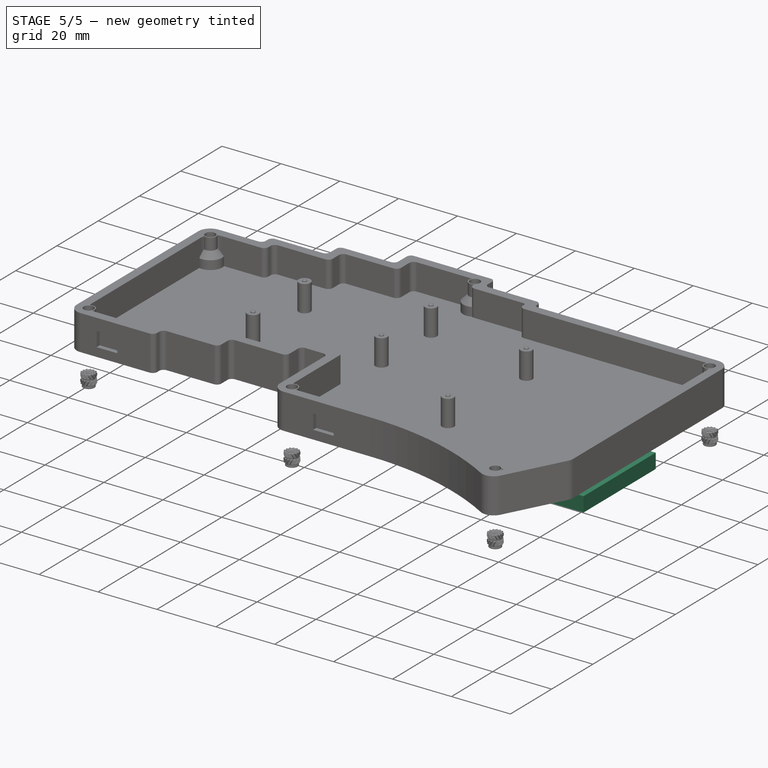
[diagram: stage 5 of 5 — iso view after this stage's code; geometry added in this stage tinted green]
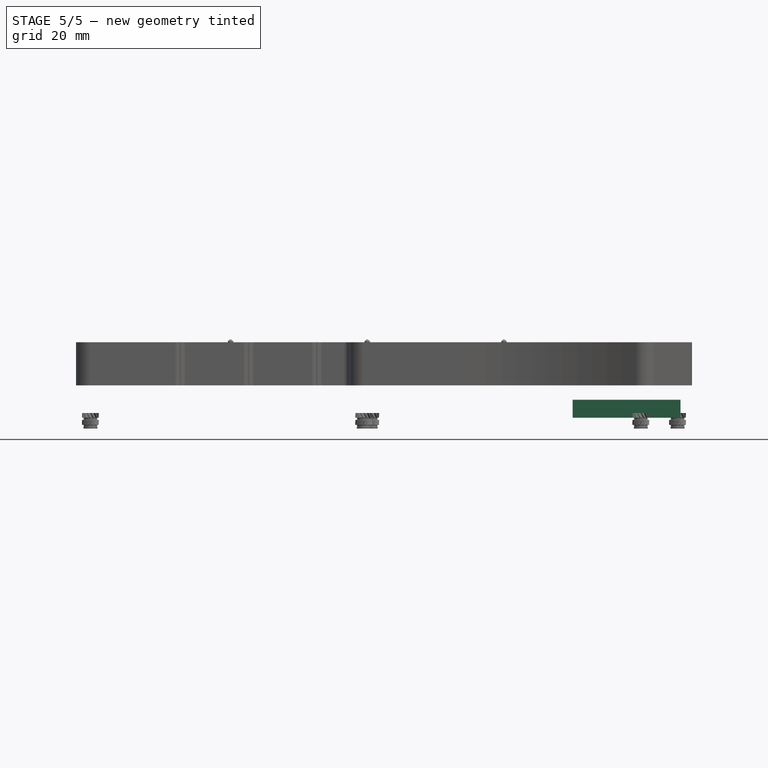
[diagram: stage 5 of 5 — front view after this stage's code; geometry added in this stage tinted green]
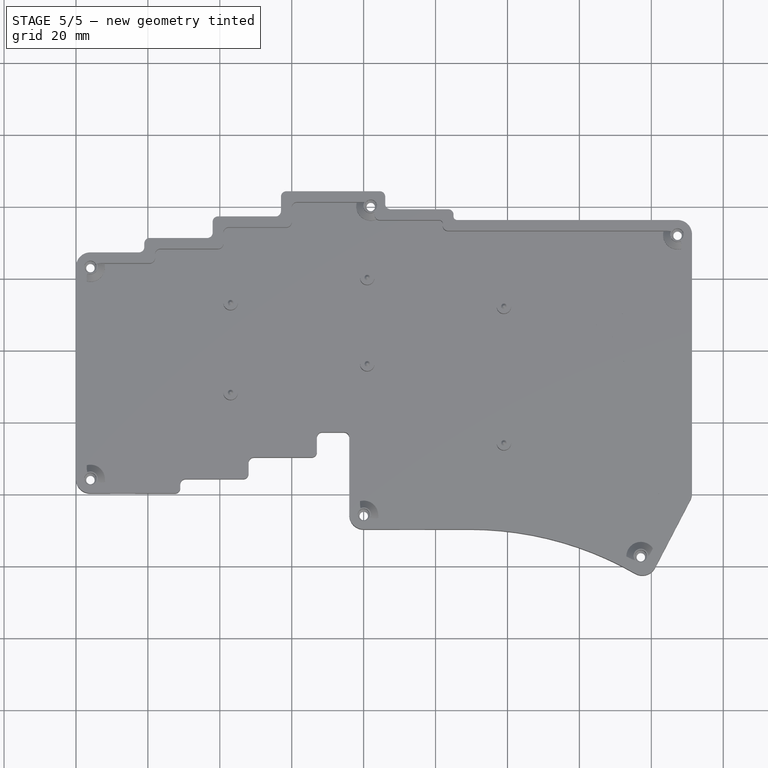
[diagram: stage 5 of 5 — top view after this stage's code; geometry added in this stage tinted green]
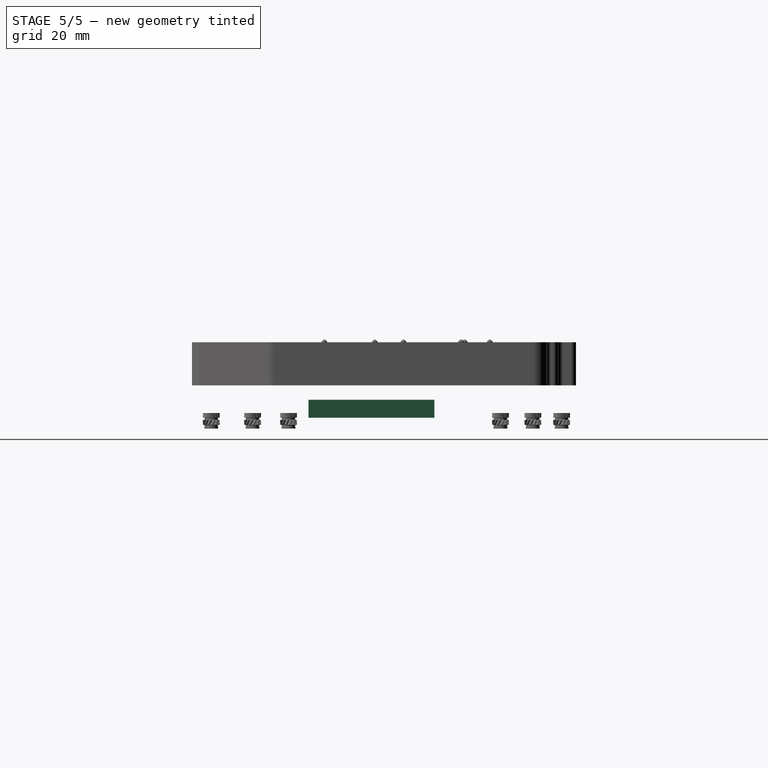
[diagram: stage 5 of 5 — right view after this stage's code; geometry added in this stage tinted green]
FEATURE [App::Link] Link001  label="SwitchPocket001"
  LinkPlacement = pos=(109.5,4.5,0) rot=(0,0,1;0rad)
  LinkedObject = -> <external SwitchHoleNegative.FCStd>#Body001
  Placement = pos=(109.5,4.5,0) rot=(0,0,1;0rad)
  expr: .Placement.Base.x = Config#VarSet.ThumbCenterX
  expr: .Placement.Base.y = <<Config>>#<<Vars>>.FrameBorder + <<Config>>#<<Vars>>.Col5Offset - <<Config>>#<<Vars>>.SwitchSpacing * 0.5
FEATURE [Part::FeaturePython] Array  # Draft array (typed FeaturePython)
  AlwaysSyncPlacement = false
  Angle = -24
  ArrayType = 1
  Axis = (0,0,1)
  Base = -> Link001
  Center = (109.5,-102.28,0)
  Count = 3
  ExpandArray = false
  Fuse = false
  IntervalAxis = (0,0,0)
  IntervalX = (50,0,0)
  IntervalY = (0,50,0)
  IntervalZ = (0,0,50)
  NumberCircles = 3
  NumberPolar = 3
  NumberX = 2
  NumberY = 2
  NumberZ = 1
  PlacementList = 3 placements: [(109.5,4.5,0),(131.701,2.1666,0),(152.931,-4.73162,0)]
  RadialDistance = 50
  ScaleList = (3) [(1,1,1),(1,1,1),(1,1,1)]
  Symmetry = 1
  TangentialDistance = 25
  expr: .Center.x = <<Config>>#<<Vars>>.ThumbCenterX
  expr: .Center.y = Config#VarSet.ThumbCenterY
  expr: Angle = <<Config>>#<<Vars>>.ThumbRotationAngle * 2
FEATURE [App::Link] Link002  label="Compound"
  LinkedObject = -> <external lib/mx_switch.FCStd>#Compound
FEATURE [Part::FeaturePython] PointArray001  label="switches_grid"  # Draft array (typed FeaturePython)
  Base = -> Link002
  Count = 19
  Fuse = false
  PointObject = -> Sketch
FEATURE [App::Link] Link003  label="Compound001"
  LinkPlacement = pos=(109.5,4.5,0) rot=(0,0,1;0rad)
  LinkedObject = -> <external lib/mx_switch.FCStd>#Compound
  Placement = pos=(109.5,4.5,0) rot=(0,0,1;0rad)
  expr: .Placement.Base.x = <<Config>>#<<Vars>>.ThumbCenterX
  expr: .Placement.Base.y = <<Config>>#<<Vars>>.FrameBorder + <<Config>>#<<Vars>>.Col5Offset - <<Config>>#<<Vars>>.SwitchSpacing * 0.5
FEATURE [Part::FeaturePython] Array001  label="switches_thumb"  # Draft array (typed FeaturePython)
  AlwaysSyncPlacement = false
  Angle = -24
  ArrayType = 1
  Axis = (0,0,1)
  Base = -> Link003
  Center = (109.5,-102.28,0)
  Count = 3
  ExpandArray = false
  Fuse = false
  IntervalAxis = (0,0,0)
  IntervalX = (50,0,0)
  IntervalY = (0,50,0)
  IntervalZ = (0,0,50)
  NumberCircles = 3
  NumberPolar = 3
  NumberX = 2
  NumberY = 2
  NumberZ = 1
  PlacementList = 3 placements: [(109.5,4.5,0),(131.701,2.1666,0),(152.931,-4.73162,0)]
  RadialDistance = 50
  ScaleList = (3) [(1,1,1),(1,1,1),(1,1,1)]
  Symmetry = 1
  TangentialDistance = 25
  expr: .Center.x = <<Config>>#<<Vars>>.ThumbCenterX
  expr: .Center.y = <<Config>>#<<Vars>>.ThumbCenterY
  expr: Angle = <<Config>>#<<Vars>>.ThumbRotationAngle * 2
FEATURE [Part::Box] Box  label="Battery"
  AttacherType = Attacher::AttachEngine3D
  Height = 5
  Length = 35
  Placement = pos=(138.1,44.6,-9) rot=(0,0,1;4.71239rad)
  Width = 30
  expr: .Placement.Base.z = -<<Config>>#<<Vars>>.BottomCaseHeight + 3 mm
FEATURE [PartDesign::SubShapeBinder] Binder003  label="NiceViewPocketBinder"
  BindCopyOnChange = 0
  BindMode = 0
  ClaimChildren = false
  Context = -> Body001 [Binder003.]
  Fuse = false
  MakeFace = true
  OffsetFill = false
  OffsetIntersection = false
  OffsetJoinType = 0
  OffsetOpenResult = false
  PartialLoad = false
  Refine = true
  Relative = true
  Support = -> [Link007]
  _Version = 2
FEATURE [PartDesign::Boolean] Boolean002
  BaseFeature = -> Boolean001
  Group = -> [Binder003]
  Refine = true
  Suppressed = false
  Type = 1
  UsePlacement = true
FEATURE [PartDesign::SubShapeBinder] Binder004  label="SwitchGridPocketBinder"
  BindCopyOnChange = 0
  BindMode = 0
  ClaimChildren = false
  Context = -> Body001 [Boolean003.Binder004.]
  Fuse = false
  MakeFace = true
  OffsetFill = false
  OffsetIntersection = false
  OffsetJoinType = 0
  OffsetOpenResult = false
  PartialLoad = false
  Refine = true
  Relative = true
  Support = -> [PointArray]
  _Version = 2
FEATURE [PartDesign::Boolean] Boolean003
  BaseFeature = -> Boolean002
  Group = -> [Binder004]
  Refine = true
  Suppressed = false
  Type = 1
  UsePlacement = true
FEATURE [Sketcher::SketchObject] Sketch004
  ArcFitTolerance = 1e-06
  AttachmentSupport = -> [XY_Plane]
  FullyConstrained = true
  MakeInternals = false
  MapMode = 5
  sketch-geometry (1):
    g0: Circle CenterX=0 CenterY=0 CenterZ=0 NormalX=0 NormalY=0 NormalZ=1 AngleXU=0 Radius=4.5
  constraints (2):
    c: Coincident(g0,g-1)
    c: Diameter(g0) = 9
FEATURE [Part::FeaturePython] PointArray003  label="holesGeometry"  # Draft array (typed FeaturePython)
  Base = -> Sketch004
  Count = 6
  Fuse = false
  PointObject = -> Sketch003
FEATURE [PartDesign::SubShapeBinder] Binder007  label="StandoffsGeometryBinder"
  BindCopyOnChange = 0
  BindMode = 0
  ClaimChildren = false
  Context = -> Body002 [Binder007.]
  Fuse = false
  MakeFace = true
  OffsetFill = false
  OffsetIntersection = false
  OffsetJoinType = 0
  OffsetOpenResult = false
  PartialLoad = false
  Refine = true
  Relative = true
  Support = -> [PointArray002]
  _Version = 2
FEATURE [PartDesign::SubShapeBinder] Binder008
  BindCopyOnChange = 0
  BindMode = 0
  ClaimChildren = false
  Context = -> Body002 [Binder008.]
  Fuse = false
  MakeFace = true
  OffsetFill = false
  OffsetIntersection = false
  OffsetJoinType = 0
  OffsetOpenResult = false
  PartialLoad = false
  Refine = true
  Relative = true
  Support = -> [Binder007]
  _Version = 2
FEATURE [PartDesign::SubShapeBinder] Binder009  label="M3HoleGeometryBinder"
  BindCopyOnChange = 0
  BindMode = 0
  ClaimChildren = false
  Context = -> Body001 [Binder009.]
  Fuse = false
  MakeFace = true
  OffsetFill = false
  OffsetIntersection = false
  OffsetJoinType = 0
  OffsetOpenResult = false
  PartialLoad = false
  Placement = pos=(0,0,3) rot=(0,0,1;0rad)
  Refine = true
  Relative = true
  Support = -> [PointArray003]
  _Version = 2
  expr: .Placement.Base.z = <<Config>>#<<Vars>>.PlateThickness
FEATURE [PartDesign::Hole] Hole
  BaseFeature = -> Boolean003
  CustomThreadClearance = 0
  Depth = 25
  DepthType = 0
  Diameter = 3.4
  DrillForDepth = false
  DrillPoint = 1
  DrillPointAngle = 118
  HoleCutCountersinkAngle = 90
  HoleCutCustomValues = false
  HoleCutDepth = 0
  HoleCutDiameter = 6.1
  HoleCutType = 2
  ModelThread = false
  Profile = -> Binder009
  Refine = true
  Suppressed = false
  Tapered = false
  TaperedAngle = 90
  ThreadClass = 0
  ThreadDepth = 25
  ThreadDepthType = 0
  ThreadDirection = 0
  ThreadFit = 0
  ThreadSize = 9
  ThreadType = 1
  Threaded = false
  UseCustomThreadClearance = false
FEATURE [PartDesign::SubShapeBinder] Binder012  label="SupportBinder"
  BindCopyOnChange = 0
  BindMode = 0
  ClaimChildren = false
  Context = -> Body001 [Binder012.]
  Fuse = false
  MakeFace = true
  OffsetFill = false
  OffsetIntersection = false
  OffsetJoinType = 0
  OffsetOpenResult = false
  PartialLoad = false
  Refine = true
  Relative = true
  Support = -> [PointArray004]
  _Version = 2
FEATURE [PartDesign::Boolean] Boolean006
  BaseFeature = -> Hole
  Group = -> [Binder012]
  Refine = true
  Suppressed = false
  Type = 1
  UsePlacement = true
FEATURE [PartDesign::SubShapeBinder] Binder015
  BindCopyOnChange = 0
  BindMode = 0
  ClaimChildren = false
  Context = -> Body001 [Binder015.]
  Fuse = false
  MakeFace = true
  OffsetFill = false
  OffsetIntersection = false
  OffsetJoinType = 0
  OffsetOpenResult = false
  PartialLoad = false
  Placement = pos=(125.5,55.9,3) rot=(0,0,1;0rad)
  Refine = true
  Relative = true
  Support = -> [<external ../logo/Logo.FCStd>#Sketch]
  _Version = 2
  expr: .Placement.Base.z = <<Config>>#<<Vars>>.PlateThickness
FEATURE [PartDesign::Pocket] Pocket
  BaseFeature = -> Boolean006
  Direction = (0,0,-1)
  Length = 0.5
  Length2 = 5
  Profile = -> Binder015
  Refine = true
  Suppressed = false
  Type = 0
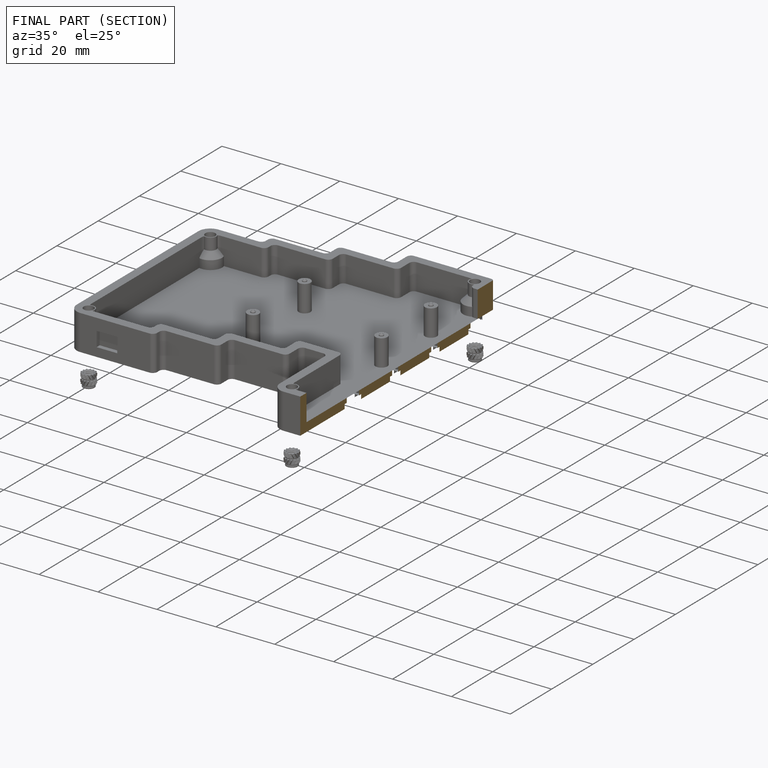
[diagram: finished part — half-section view (interior)]
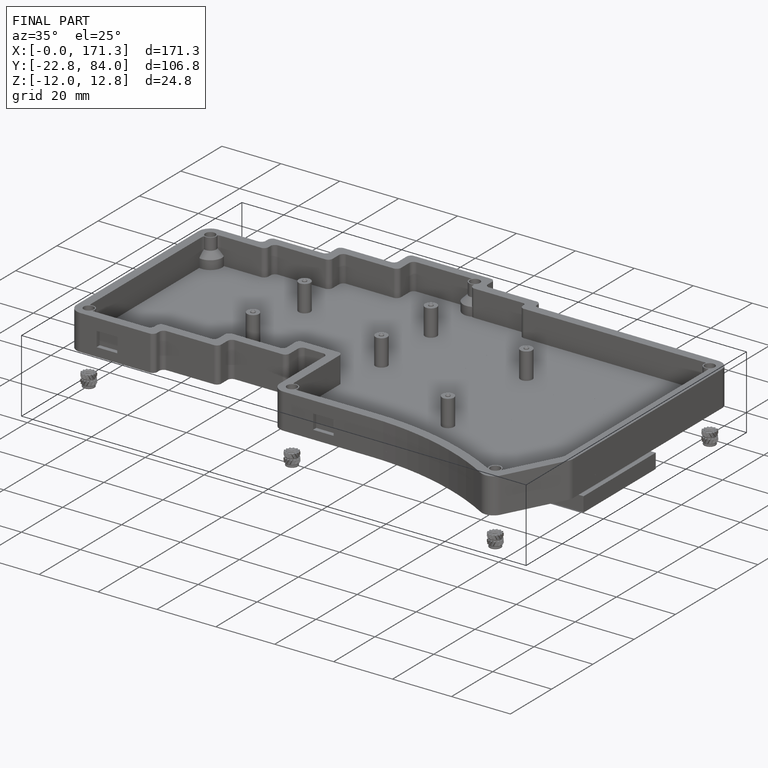
[diagram: finished part — iso view with bounding-box wireframe]
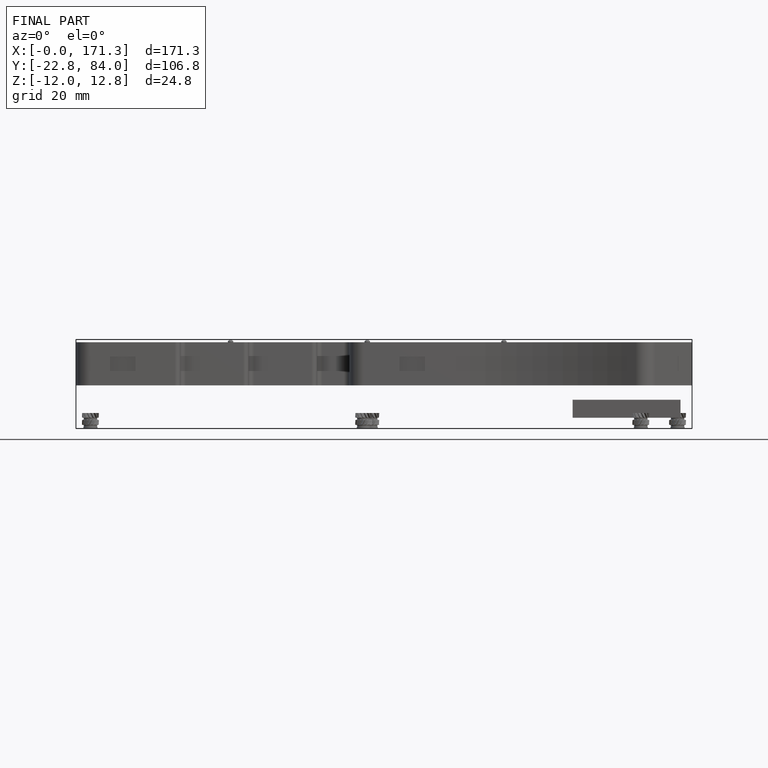
[diagram: finished part — front view with bounding-box wireframe]
